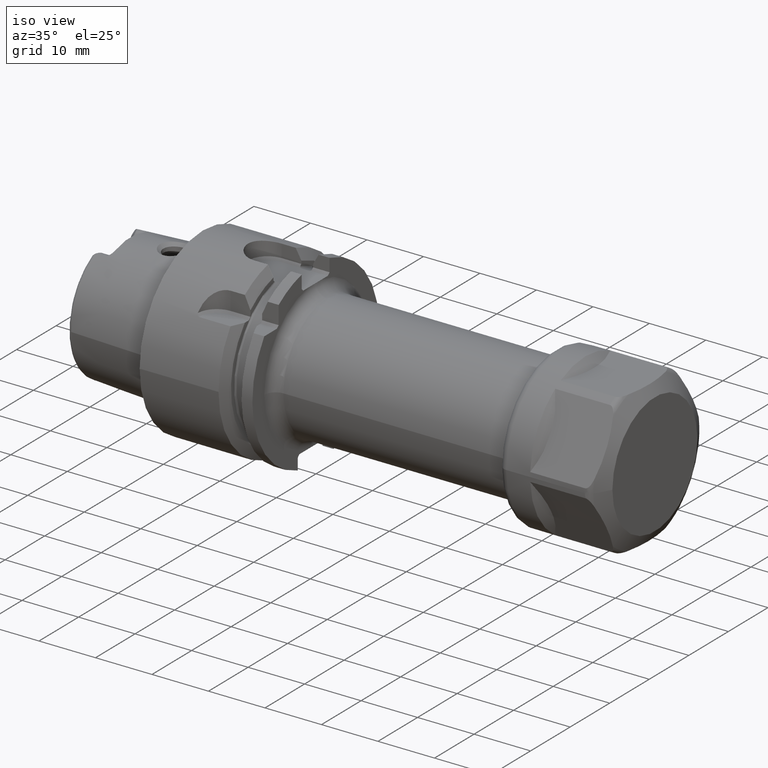
[diagram: clean part render]
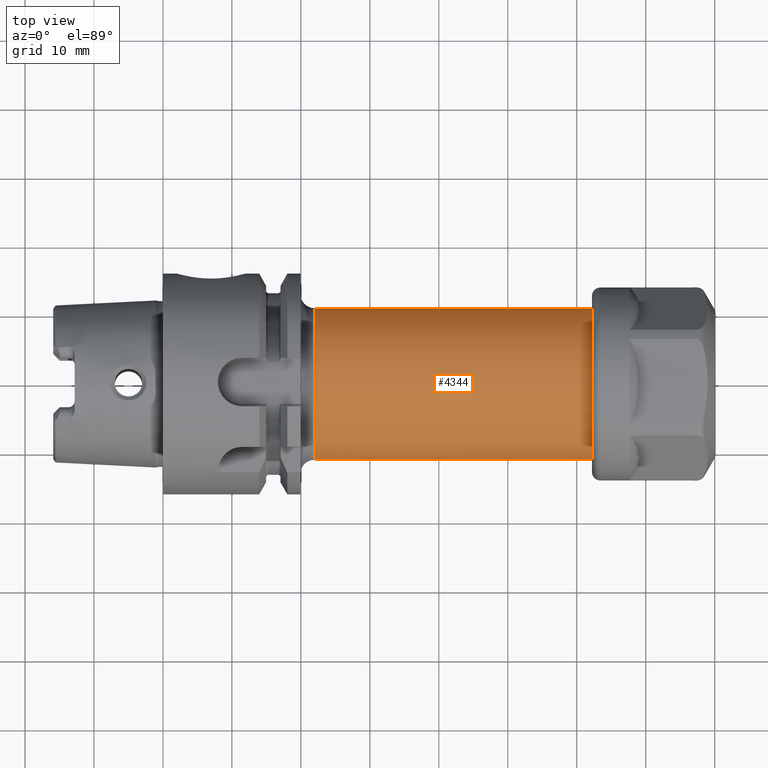
[diagram: tour spotlight — one face highlighted and labeled with its STEP entity id]
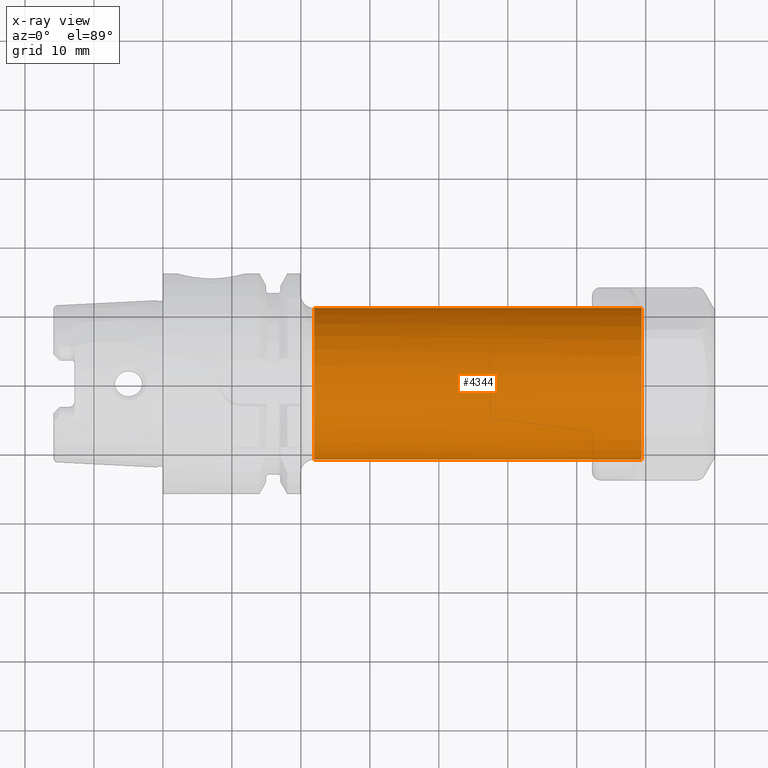
[diagram: x-ray of the same camera — body ghosted, this tour face saturated]
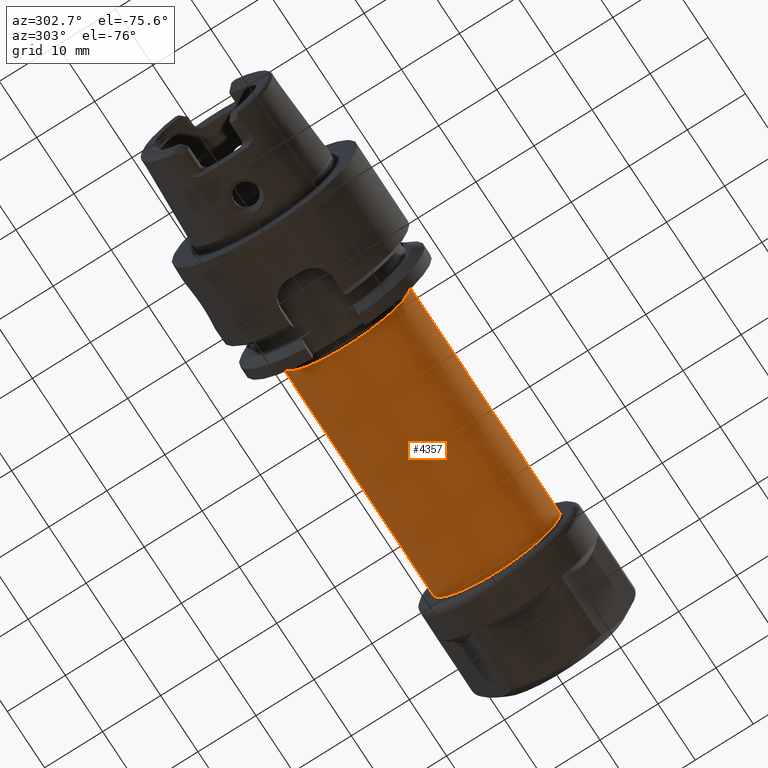
[diagram: tour spotlight — one face highlighted and labeled with its STEP entity id]
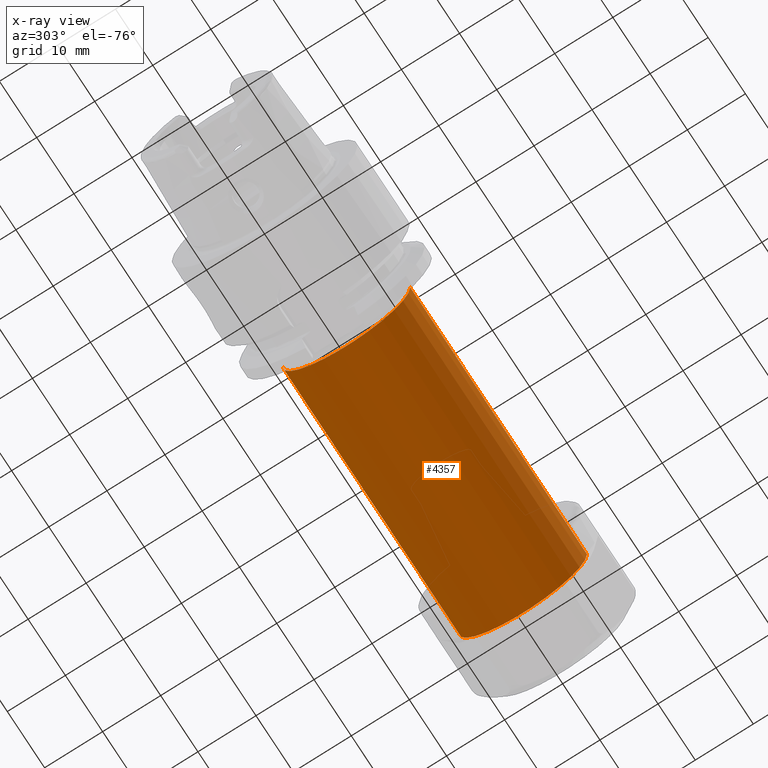
[diagram: x-ray of the same camera — body ghosted, this tour face saturated]
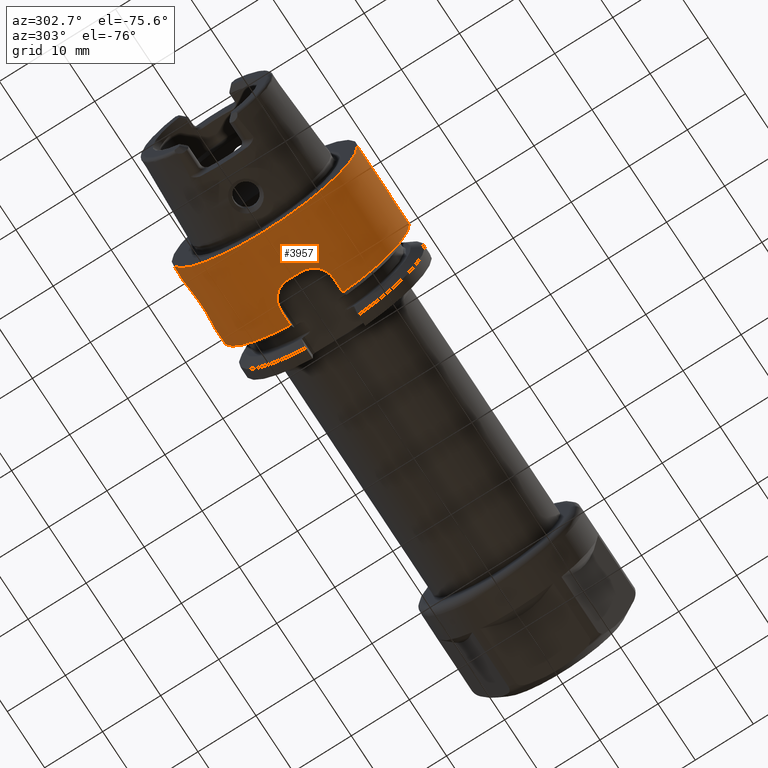
[diagram: tour spotlight — one face highlighted and labeled with its STEP entity id]
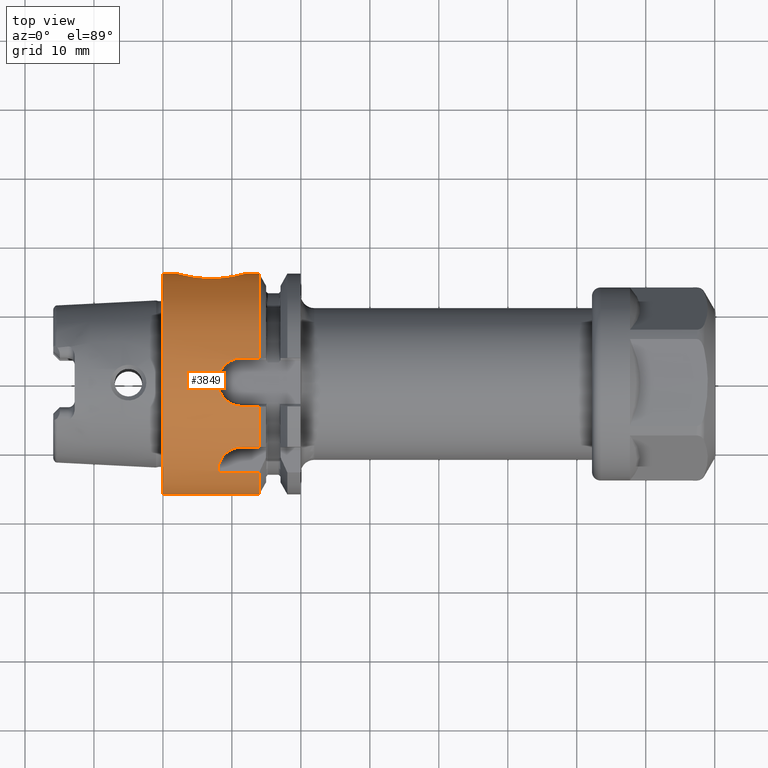
[diagram: tour spotlight — one face highlighted and labeled with its STEP entity id]
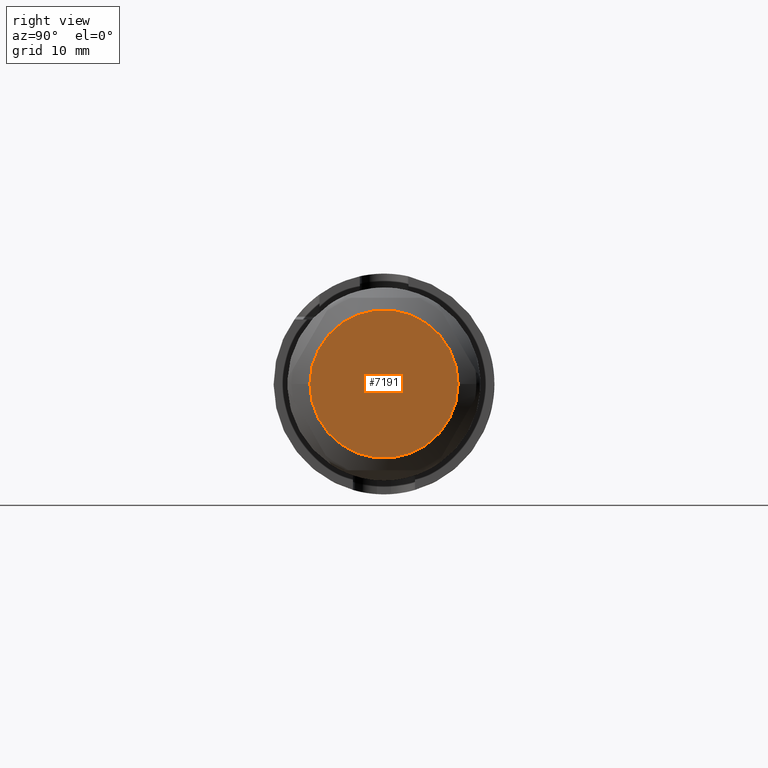
[diagram: tour spotlight — one face highlighted and labeled with its STEP entity id]
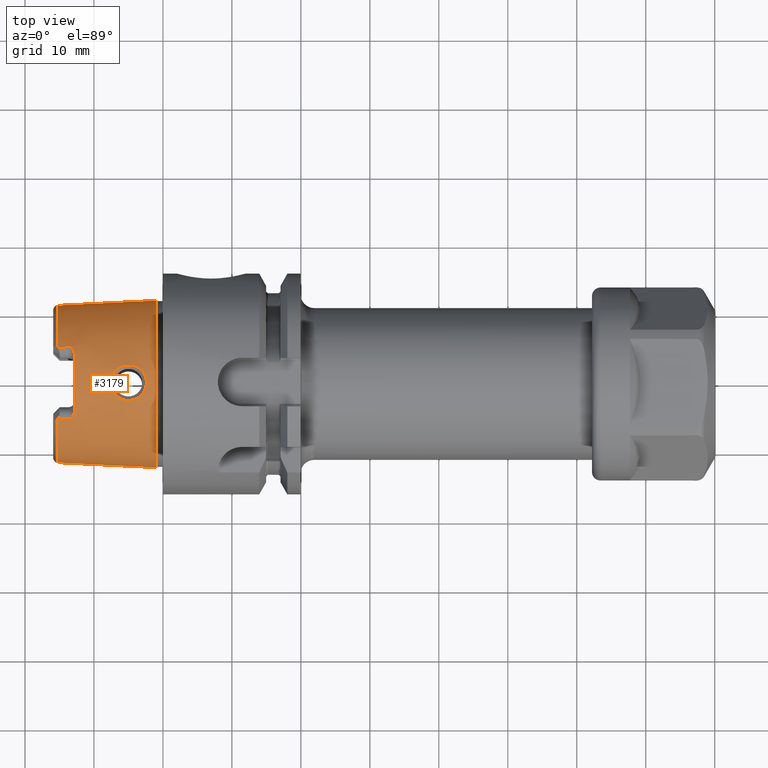
[diagram: tour spotlight — one face highlighted and labeled with its STEP entity id]
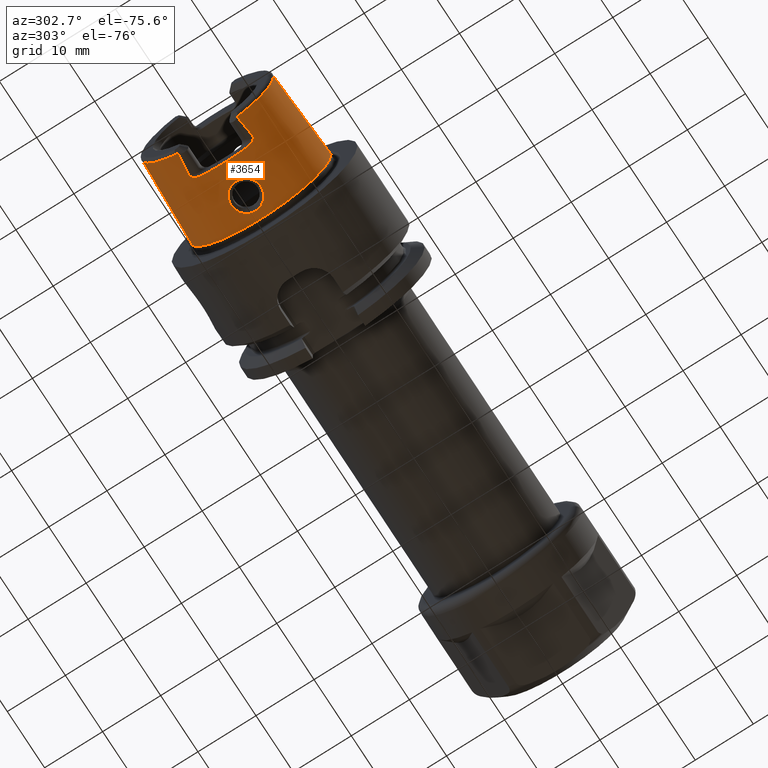
[diagram: tour spotlight — one face highlighted and labeled with its STEP entity id]
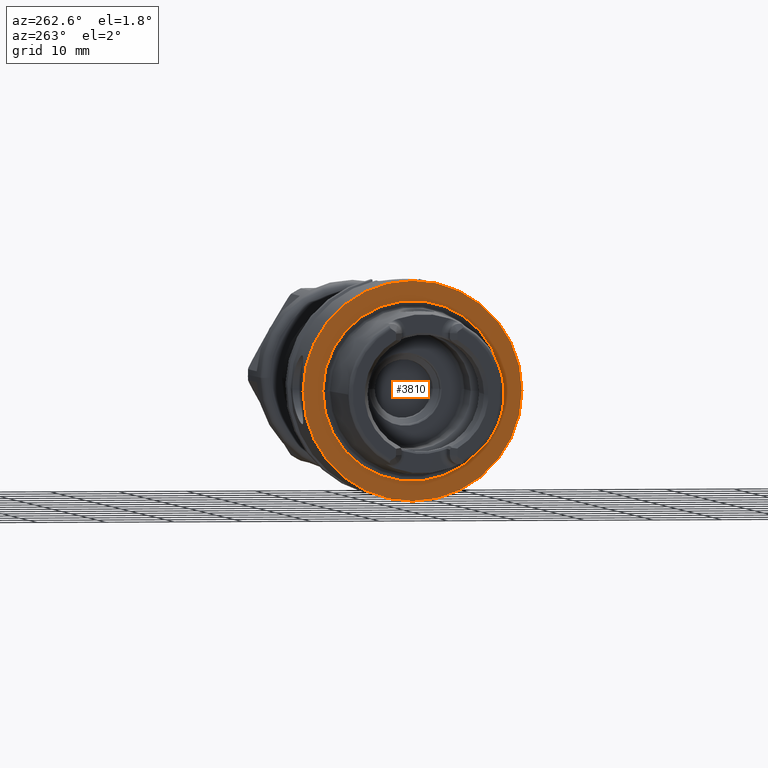
[diagram: tour spotlight — one face highlighted and labeled with its STEP entity id]
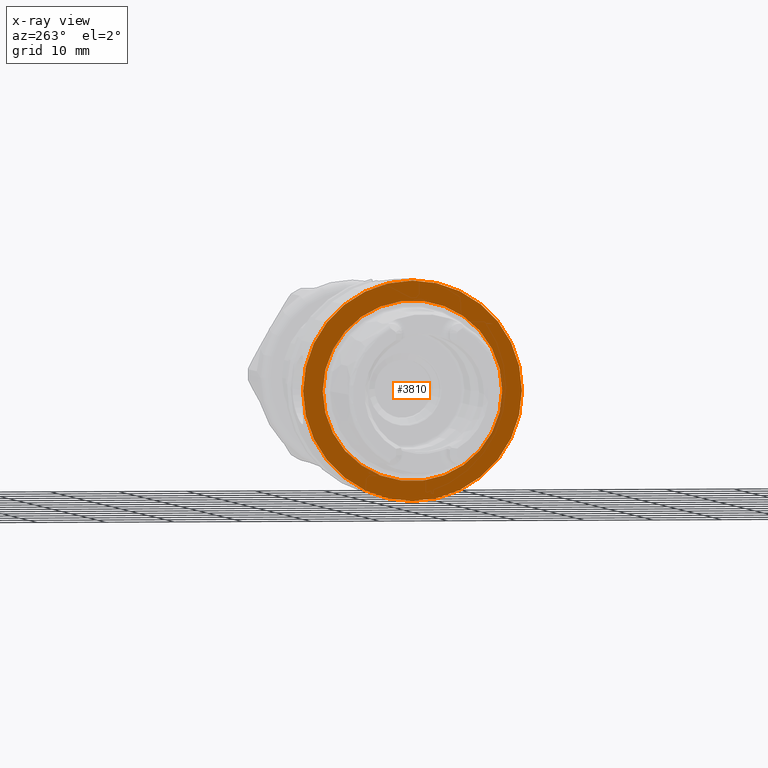
[diagram: x-ray of the same camera — body ghosted, this tour face saturated]
A machine part: a face-by-face anatomy tour. The part has 207 B-rep faces; the first image is the clean iso view, then the 8 largest visible faces are spotlighted one at a time (largest first), each with its STEP entity span.

Face 1 — top view, entity #4344. An x-ray twin of the same camera follows (body ghosted, this face saturated) — the face is partly hidden behind the body. In plain terms, the highlighted cylindrical surface (partial cylindrical patch) has radius 11 mm, axis along (1, 0, 0).
Definition (entity closure, byte-faithful):
#1225=CARTESIAN_POINT('',(2.195E1,0.E0,0.E0));
#1226=DIRECTION('',(1.E0,0.E0,0.E0));
#1227=DIRECTION('',(0.E0,3.570743503254E-6,9.999999999936E-1));
#1228=AXIS2_PLACEMENT_3D('',#1225,#1226,#1227);
#1230=CARTESIAN_POINT('',(2.195E1,0.E0,0.E0));
#1231=DIRECTION('',(1.E0,0.E0,0.E0));
#1232=DIRECTION('',(0.E0,1.E0,0.E0));
#1233=AXIS2_PLACEMENT_3D('',#1230,#1231,#1232);
#1235=CARTESIAN_POINT('',(6.94E1,0.E0,0.E0));
#1236=DIRECTION('',(1.E0,0.E0,0.E0));
#1237=DIRECTION('',(0.E0,1.E0,0.E0));
#1238=AXIS2_PLACEMENT_3D('',#1235,#1236,#1237);
#1240=DIRECTION('',(-1.E0,0.E0,-9.561997652939E-14));
#1241=VECTOR('',#1240,4.745E1);
#1242=CARTESIAN_POINT('',(6.94E1,-1.1E1,0.E0));
#1243=LINE('',#1242,#1241);
#1249=DIRECTION('',(-1.E0,0.E0,6.364966704577E-14));
#1250=VECTOR('',#1249,4.745E1);
#1251=CARTESIAN_POINT('',(6.94E1,1.1E1,0.E0));
#1252=LINE('',#1251,#1250);
#3116=CARTESIAN_POINT('',(2.195E1,3.927817853579E-5,1.099999999993E1));
#3117=CARTESIAN_POINT('',(2.195E1,-1.1E1,0.E0));
#3118=VERTEX_POINT('',#3116);
#3119=VERTEX_POINT('',#3117);
#3122=CARTESIAN_POINT('',(2.195E1,1.1E1,0.E0));
#3123=VERTEX_POINT('',#3122);
#3126=CARTESIAN_POINT('',(6.94E1,1.1E1,0.E0));
#3127=VERTEX_POINT('',#3126);
#3128=CARTESIAN_POINT('',(6.94E1,-1.1E1,0.E0));
#3129=VERTEX_POINT('',#3128);
#4329=CARTESIAN_POINT('',(1.74775E1,0.E0,0.E0));
#4330=DIRECTION('',(1.E0,0.E0,0.E0));
#4331=DIRECTION('',(0.E0,-1.E0,0.E0));
#4332=AXIS2_PLACEMENT_3D('',#4329,#4330,#4331);
#4333=CYLINDRICAL_SURFACE('',#4332,1.1E1);
#4334=ORIENTED_EDGE('',*,*,#4319,.F.);
#4335=ORIENTED_EDGE('',*,*,#4304,.F.);
#4337=ORIENTED_EDGE('',*,*,#4336,.F.);
#4339=ORIENTED_EDGE('',*,*,#4338,.T.);
#4341=ORIENTED_EDGE('',*,*,#4340,.T.);
#4342=EDGE_LOOP('',(#4334,#4335,#4337,#4339,#4341));
#4343=FACE_OUTER_BOUND('',#4342,.F.);
#4344=ADVANCED_FACE('',(#4343),#4333,.T.);
#1229=CIRCLE('',#1228,1.1E1);
#1234=CIRCLE('',#1233,1.1E1);
#1239=CIRCLE('',#1238,1.1E1);
#4304=EDGE_CURVE('',#3123,#3118,#1234,.T.);
#4319=EDGE_CURVE('',#3118,#3119,#1229,.T.);
#4336=EDGE_CURVE('',#3127,#3123,#1252,.T.);
#4338=EDGE_CURVE('',#3127,#3129,#1239,.T.);
#4340=EDGE_CURVE('',#3129,#3119,#1243,.T.);

Face 2 — auxiliary view, entity #4357. An x-ray twin of the same camera follows (body ghosted, this face saturated) — the face is partly hidden behind the body. In plain terms, the highlighted cylindrical surface (partial cylindrical patch) has radius 11 mm, axis along (1, 0, 0).
Definition (entity closure, byte-faithful):
#1210=CARTESIAN_POINT('',(2.195E1,0.E0,0.E0));
#1211=DIRECTION('',(1.E0,0.E0,0.E0));
#1212=DIRECTION('',(0.E0,-1.E0,0.E0));
#1213=AXIS2_PLACEMENT_3D('',#1210,#1211,#1212);
#1240=DIRECTION('',(-1.E0,0.E0,-9.561997652939E-14));
#1241=VECTOR('',#1240,4.745E1);
#1242=CARTESIAN_POINT('',(6.94E1,-1.1E1,0.E0));
#1243=LINE('',#1242,#1241);
#1244=CARTESIAN_POINT('',(6.94E1,0.E0,0.E0));
#1245=DIRECTION('',(-1.E0,0.E0,0.E0));
#1246=DIRECTION('',(0.E0,1.E0,0.E0));
#1247=AXIS2_PLACEMENT_3D('',#1244,#1245,#1246);
#1249=DIRECTION('',(-1.E0,0.E0,6.364966704577E-14));
#1250=VECTOR('',#1249,4.745E1);
#1251=CARTESIAN_POINT('',(6.94E1,1.1E1,0.E0));
#1252=LINE('',#1251,#1250);
#3117=CARTESIAN_POINT('',(2.195E1,-1.1E1,0.E0));
#3119=VERTEX_POINT('',#3117);
#3122=CARTESIAN_POINT('',(2.195E1,1.1E1,0.E0));
#3123=VERTEX_POINT('',#3122);
#3126=CARTESIAN_POINT('',(6.94E1,1.1E1,0.E0));
#3127=VERTEX_POINT('',#3126);
#3128=CARTESIAN_POINT('',(6.94E1,-1.1E1,0.E0));
#3129=VERTEX_POINT('',#3128);
#4345=CARTESIAN_POINT('',(1.74775E1,0.E0,0.E0));
#4346=DIRECTION('',(1.E0,0.E0,0.E0));
#4347=DIRECTION('',(0.E0,-1.E0,0.E0));
#4348=AXIS2_PLACEMENT_3D('',#4345,#4346,#4347);
#4349=CYLINDRICAL_SURFACE('',#4348,1.1E1);
#4350=ORIENTED_EDGE('',*,*,#4302,.F.);
#4351=ORIENTED_EDGE('',*,*,#4340,.F.);
#4353=ORIENTED_EDGE('',*,*,#4352,.F.);
#4354=ORIENTED_EDGE('',*,*,#4336,.T.);
#4355=EDGE_LOOP('',(#4350,#4351,#4353,#4354));
#4356=FACE_OUTER_BOUND('',#4355,.F.);
#4357=ADVANCED_FACE('',(#4356),#4349,.T.);
#1214=CIRCLE('',#1213,1.1E1);
#1248=CIRCLE('',#1247,1.1E1);
#4302=EDGE_CURVE('',#3119,#3123,#1214,.T.);
#4336=EDGE_CURVE('',#3127,#3123,#1252,.T.);
#4340=EDGE_CURVE('',#3129,#3119,#1243,.T.);
#4352=EDGE_CURVE('',#3127,#3129,#1248,.T.);

Face 3 — auxiliary view, entity #3957. In plain terms, the highlighted cylindrical surface (partial cylindrical patch) has radius 16 mm, axis along (1, 0, 0).
Definition (entity closure, byte-faithful):
#657=CARTESIAN_POINT('',(0.E0,0.E0,0.E0));
#658=DIRECTION('',(-1.E0,0.E0,0.E0));
#659=DIRECTION('',(0.E0,1.E0,0.E0));
#660=AXIS2_PLACEMENT_3D('',#657,#658,#659);
#672=CARTESIAN_POINT('',(1.2E1,1.6E1,1.008602021616E-14));
#775=CARTESIAN_POINT('',(2.E0,1.6E1,0.E0));
#839=CARTESIAN_POINT('',(7.E0,1.519868415357E1,-5.E0));
#840=CARTESIAN_POINT('',(7.265573752108E0,1.519868415357E1,-5.E0));
#841=CARTESIAN_POINT('',(7.787775370214E0,1.521251267140E1,-4.958250951519E0));
#842=CARTESIAN_POINT('',(8.552162180971E0,1.527172049631E1,-4.774439476453E0));
#843=CARTESIAN_POINT('',(9.273893545993E0,1.536269559419E1,-4.475749077499E0));
#844=CARTESIAN_POINT('',(9.943265630933E0,1.547682106835E1,-4.067370527077E0));
#845=CARTESIAN_POINT('',(1.054555286973E1,1.560357056947E1,-3.555049249105E0));
#846=CARTESIAN_POINT('',(1.106248803419E1,1.573010080616E1,-2.950844212215E0));
#847=CARTESIAN_POINT('',(1.147821598612E1,1.584346513917E1,-2.270710839893E0));
#848=CARTESIAN_POINT('',(1.177930888516E1,1.593188386378E1,-1.537904894141E0));
#849=CARTESIAN_POINT('',(1.195987549417E1,1.598739360145E1,-7.751311207503E-1));
#850=CARTESIAN_POINT('',(1.2E1,1.6E1,-2.599700860639E-1));
#851=CARTESIAN_POINT('',(1.2E1,1.6E1,1.008602021616E-14));
#853=CARTESIAN_POINT('',(2.E0,1.6E1,0.E0));
#854=CARTESIAN_POINT('',(2.E0,1.6E1,-2.599291448819E-1));
#855=CARTESIAN_POINT('',(2.040105170769E0,1.598739957788E1,-7.750591203535E-1));
#856=CARTESIAN_POINT('',(2.220741048432E0,1.593186842946E1,-1.538105013814E0));
#857=CARTESIAN_POINT('',(2.521930719684E0,1.584342315306E1,-2.270997861791E0));
#858=CARTESIAN_POINT('',(2.937609181598E0,1.573007755826E1,-2.950942841200E0));
#859=CARTESIAN_POINT('',(3.454189659439E0,1.560363401361E1,-3.554750620759E0));
#860=CARTESIAN_POINT('',(4.056033401020E0,1.547696027088E1,-4.066836530803E0));
#861=CARTESIAN_POINT('',(4.725086333586E0,1.536284855481E1,-4.475228339106E0));
#862=CARTESIAN_POINT('',(5.446901243607E0,1.527181251262E1,-4.774149908220E0));
#863=CARTESIAN_POINT('',(6.211585043176E0,1.521253854427E1,-4.958172918146E0));
#864=CARTESIAN_POINT('',(6.734183056938E0,1.519868415357E1,-5.E0));
#865=CARTESIAN_POINT('',(7.E0,1.519868415357E1,-5.E0));
#867=DIRECTION('',(-1.E0,0.E0,0.E0));
#868=VECTOR('',#867,2.E0);
#869=CARTESIAN_POINT('',(2.E0,1.6E1,0.E0));
#870=LINE('',#869,#868);
#871=DIRECTION('',(-1.E0,0.E0,0.E0));
#872=VECTOR('',#871,1.396484030111E1);
#873=CARTESIAN_POINT('',(1.396484030111E1,-1.6E1,0.E0));
#874=LINE('',#873,#872);
#875=CARTESIAN_POINT('',(1.396484030111E1,0.E0,0.E0));
#876=DIRECTION('',(1.E0,0.E0,0.E0));
#877=DIRECTION('',(0.E0,-1.E0,0.E0));
#878=AXIS2_PLACEMENT_3D('',#875,#876,#877);
#880=DIRECTION('',(1.E0,0.E0,0.E0));
#881=VECTOR('',#880,2.514840301107E0);
#882=CARTESIAN_POINT('',(1.145E1,-4.5145E0,-1.534989543124E1));
#883=LINE('',#882,#881);
#884=CARTESIAN_POINT('',(7.95E0,-1.0145E0,-1.596780478807E1));
#885=CARTESIAN_POINT('',(7.95E0,-1.183052166142E0,-1.595709597901E1));
#886=CARTESIAN_POINT('',(7.974092980258E0,-1.516120703984E0,-1.593060693980E1));
#887=CARTESIAN_POINT('',(8.081281434952E0,-2.007499252738E0,-1.587605075952E1));
#888=CARTESIAN_POINT('',(8.257346373518E0,-2.477382109953E0,-1.580927357571E1));
#889=CARTESIAN_POINT('',(8.496783431328E0,-2.914945049402E0,-1.573416688996E1));
#890=CARTESIAN_POINT('',(8.797041637400E0,-3.315494092662E0,-1.565429607059E1));
#891=CARTESIAN_POINT('',(9.148541821424E0,-3.667037459511E0,-1.557530796119E1));
#892=CARTESIAN_POINT('',(9.548692626697E0,-3.967141577191E0,-1.550121617294E1));
#893=CARTESIAN_POINT('',(9.986135339502E0,-4.206722330631E0,-1.543757807998E1));
#894=CARTESIAN_POINT('',(1.045657265286E1,-4.383126672186E0,-1.538815380690E1));
#895=CARTESIAN_POINT('',(1.094840210053E1,-4.490418189113E0,-1.535700809734E1));
#896=CARTESIAN_POINT('',(1.128143628612E1,-4.5145E0,-1.534989543124E1));
#897=CARTESIAN_POINT('',(1.145E1,-4.5145E0,-1.534989543124E1));
#899=CARTESIAN_POINT('',(7.95E0,0.E0,0.E0));
#900=DIRECTION('',(1.E0,0.E0,0.E0));
#901=DIRECTION('',(0.E0,-6.340625E-2,-9.979877992545E-1));
#902=AXIS2_PLACEMENT_3D('',#899,#900,#901);
#904=CARTESIAN_POINT('',(1.145E1,4.5145E0,-1.534989543124E1));
#905=CARTESIAN_POINT('',(1.128155525724E1,4.5145E0,-1.534989543124E1));
#906=CARTESIAN_POINT('',(1.094864753753E1,4.490465898103E0,-1.535699417955E1));
#907=CARTESIAN_POINT('',(1.045631777658E1,4.383072707401E0,-1.538816956741E1));
#908=CARTESIAN_POINT('',(9.985757699294E0,4.206550857373E0,-1.543762541927E1));
#909=CARTESIAN_POINT('',(9.548444842132E0,3.966958523225E0,-1.550126187477E1));
#910=CARTESIAN_POINT('',(9.148866113494E0,3.667268424781E0,-1.557524952146E1));
#911=CARTESIAN_POINT('',(8.797786385284E0,3.316309320668E0,-1.565411863807E1));
#912=CARTESIAN_POINT('',(8.497639723364E0,2.916249129552E0,-1.573392168619E1));
#913=CARTESIAN_POINT('',(8.257987407753E0,2.478821716195E0,-1.580905025516E1));
#914=CARTESIAN_POINT('',(8.081524017197E0,2.008429633790E0,-1.587593899400E1));
#915=CARTESIAN_POINT('',(7.974136253933E0,1.516571122065E0,-1.593056875927E1));
#916=CARTESIAN_POINT('',(7.95E0,1.183199158104E0,-1.595708664001E1));
#917=CARTESIAN_POINT('',(7.95E0,1.0145E0,-1.596780478807E1));
#919=DIRECTION('',(1.E0,0.E0,0.E0));
#920=VECTOR('',#919,2.514840301107E0);
#921=CARTESIAN_POINT('',(1.145E1,4.5145E0,-1.534989543124E1));
#922=LINE('',#921,#920);
#923=CARTESIAN_POINT('',(1.396484030111E1,0.E0,0.E0));
#924=DIRECTION('',(1.E0,0.E0,0.E0));
#925=DIRECTION('',(0.E0,2.8215625E-1,-9.593684644525E-1));
#926=AXIS2_PLACEMENT_3D('',#923,#924,#925);
#928=DIRECTION('',(-1.E0,0.E0,0.E0));
#929=VECTOR('',#928,1.964840301107E0);
#930=CARTESIAN_POINT('',(1.396484030111E1,1.6E1,0.E0));
#931=LINE('',#930,#929);
#1509=CARTESIAN_POINT('',(1.396484030111E1,4.5145E0,-1.534989543124E1));
#1618=CARTESIAN_POINT('',(1.396484030111E1,-4.5145E0,-1.534989543124E1));
#2843=VERTEX_POINT('',#1509);
#2853=VERTEX_POINT('',#1618);
#2954=CARTESIAN_POINT('',(1.145E1,-4.5145E0,-1.534989543124E1));
#2955=VERTEX_POINT('',#2954);
#2956=CARTESIAN_POINT('',(7.95E0,-1.0145E0,-1.596780478807E1));
#2957=VERTEX_POINT('',#2956);
#2958=CARTESIAN_POINT('',(7.95E0,1.0145E0,-1.596780478807E1));
#2959=VERTEX_POINT('',#2958);
#2960=CARTESIAN_POINT('',(1.145E1,4.5145E0,-1.534989543124E1));
#2961=VERTEX_POINT('',#2960);
#3000=CARTESIAN_POINT('',(0.E0,1.6E1,0.E0));
#3001=CARTESIAN_POINT('',(0.E0,-1.6E1,0.E0));
#3002=VERTEX_POINT('',#3000);
#3003=VERTEX_POINT('',#3001);
#3004=CARTESIAN_POINT('',(1.396484030111E1,1.6E1,0.E0));
#3005=VERTEX_POINT('',#3004);
#3006=CARTESIAN_POINT('',(1.396484030111E1,-1.6E1,0.E0));
#3007=VERTEX_POINT('',#3006);
#3100=VERTEX_POINT('',#672);
#3102=VERTEX_POINT('',#775);
#3103=VERTEX_POINT('',#839);
#3930=CARTESIAN_POINT('',(-1.76925E1,0.E0,0.E0));
#3931=DIRECTION('',(1.E0,0.E0,0.E0));
#3932=DIRECTION('',(0.E0,-1.E0,0.E0));
#3933=AXIS2_PLACEMENT_3D('',#3930,#3931,#3932);
#3934=CYLINDRICAL_SURFACE('',#3933,1.6E1);
#3935=ORIENTED_EDGE('',*,*,#3862,.F.);
#3936=ORIENTED_EDGE('',*,*,#3873,.F.);
#3937=ORIENTED_EDGE('',*,*,#3843,.T.);
#3938=ORIENTED_EDGE('',*,*,#3802,.T.);
#3939=ORIENTED_EDGE('',*,*,#3840,.F.);
#3941=ORIENTED_EDGE('',*,*,#3940,.T.);
#3943=ORIENTED_EDGE('',*,*,#3942,.F.);
#3945=ORIENTED_EDGE('',*,*,#3944,.F.);
#3947=ORIENTED_EDGE('',*,*,#3946,.T.);
#3949=ORIENTED_EDGE('',*,*,#3948,.F.);
#3951=ORIENTED_EDGE('',*,*,#3950,.T.);
#3953=ORIENTED_EDGE('',*,*,#3952,.T.);
#3954=ORIENTED_EDGE('',*,*,#3818,.T.);
#3955=EDGE_LOOP('',(#3935,#3936,#3937,#3938,#3939,#3941,#3943,#3945,#3947,#3949,
#3951,#3953,#3954));
#3956=FACE_OUTER_BOUND('',#3955,.F.);
#3957=ADVANCED_FACE('',(#3956),#3934,.T.);
#661=CIRCLE('',#660,1.6E1);
#852=B_SPLINE_CURVE_WITH_KNOTS('',3,(#839,#840,#841,#842,#843,#844,#845,#846,
#847,#848,#849,#850,#851),.UNSPECIFIED.,.F.,.F.,(4,1,1,1,1,1,1,1,1,1,4),(0.E0,
1.E-1,2.E-1,3.E-1,4.E-1,5.E-1,6.E-1,7.E-1,8.E-1,9.E-1,1.E0),.UNSPECIFIED.);
#866=B_SPLINE_CURVE_WITH_KNOTS('',3,(#853,#854,#855,#856,#857,#858,#859,#860,
#861,#862,#863,#864,#865),.UNSPECIFIED.,.F.,.F.,(4,1,1,1,1,1,1,1,1,1,4),(0.E0,
1.E-1,2.E-1,3.E-1,4.E-1,5.E-1,6.E-1,7.E-1,8.E-1,9.E-1,1.E0),.UNSPECIFIED.);
#879=CIRCLE('',#878,1.6E1);
#898=B_SPLINE_CURVE_WITH_KNOTS('',3,(#884,#885,#886,#887,#888,#889,#890,#891,
#892,#893,#894,#895,#896,#897),.UNSPECIFIED.,.F.,.F.,(4,1,1,1,1,1,1,1,1,1,1,4),(
0.E0,9.090909090909E-2,1.818181818182E-1,2.727272727273E-1,3.636363636364E-1,
4.545454545455E-1,5.454545454545E-1,6.363636363636E-1,7.272727272727E-1,
8.181818181818E-1,9.090909090909E-1,1.E0),.UNSPECIFIED.);
#903=CIRCLE('',#902,1.6E1);
#918=B_SPLINE_CURVE_WITH_KNOTS('',3,(#904,#905,#906,#907,#908,#909,#910,#911,
#912,#913,#914,#915,#916,#917),.UNSPECIFIED.,.F.,.F.,(4,1,1,1,1,1,1,1,1,1,1,4),(
0.E0,9.090909090909E-2,1.818181818182E-1,2.727272727273E-1,3.636363636364E-1,
4.545454545455E-1,5.454545454545E-1,6.363636363636E-1,7.272727272727E-1,
8.181818181818E-1,9.090909090909E-1,1.E0),.UNSPECIFIED.);
#927=CIRCLE('',#926,1.6E1);
#3802=EDGE_CURVE('',#3002,#3003,#661,.T.);
#3818=EDGE_CURVE('',#3005,#3100,#931,.T.);
#3840=EDGE_CURVE('',#3007,#3003,#874,.T.);
#3843=EDGE_CURVE('',#3102,#3002,#870,.T.);
#3862=EDGE_CURVE('',#3103,#3100,#852,.T.);
#3873=EDGE_CURVE('',#3102,#3103,#866,.T.);
#3940=EDGE_CURVE('',#3007,#2853,#879,.T.);
#3942=EDGE_CURVE('',#2955,#2853,#883,.T.);
#3944=EDGE_CURVE('',#2957,#2955,#898,.T.);
#3946=EDGE_CURVE('',#2957,#2959,#903,.T.);
#3948=EDGE_CURVE('',#2961,#2959,#918,.T.);
#3950=EDGE_CURVE('',#2961,#2843,#922,.T.);
#3952=EDGE_CURVE('',#2843,#3005,#927,.T.);

Face 4 — top view, entity #3849. In plain terms, the highlighted cylindrical surface (partial cylindrical patch) has radius 16 mm, axis along (1, 0, 0).
Definition (entity closure, byte-faithful):
#652=CARTESIAN_POINT('',(0.E0,0.E0,0.E0));
#653=DIRECTION('',(1.E0,0.E0,0.E0));
#654=DIRECTION('',(0.E0,1.E0,0.E0));
#655=AXIS2_PLACEMENT_3D('',#652,#653,#654);
#672=CARTESIAN_POINT('',(1.2E1,1.6E1,1.008602021616E-14));
#673=CARTESIAN_POINT('',(1.2E1,1.6E1,1.384831210731E-1));
#674=CARTESIAN_POINT('',(1.198857472883E1,1.599642383929E1,4.152201587552E-1));
#675=CARTESIAN_POINT('',(1.193617925837E1,1.598012685317E1,8.325514525903E-1));
#676=CARTESIAN_POINT('',(1.184918862596E1,1.595341424613E1,1.242244236119E0));
#677=CARTESIAN_POINT('',(1.173005148059E1,1.591753791280E1,1.637751727769E0));
#678=CARTESIAN_POINT('',(1.158076576168E1,1.587371987355E1,2.018395523805E0));
#679=CARTESIAN_POINT('',(1.139184063221E1,1.582006425608E1,2.403716168340E0));
#680=CARTESIAN_POINT('',(1.114947778328E1,1.575421076374E1,2.804049621060E0));
#681=CARTESIAN_POINT('',(1.083383536282E1,1.567346501870E1,3.226138953249E0));
#682=CARTESIAN_POINT('',(1.041998168295E1,1.557655309088E1,3.665864750429E0));
#683=CARTESIAN_POINT('',(9.900055378106E0,1.546936725606E1,4.093942619542E0));
#684=CARTESIAN_POINT('',(9.255795997863E0,1.536009398866E1,4.484674152869E0));
#685=CARTESIAN_POINT('',(8.524207561993E0,1.526852878969E1,4.784634512282E0));
#686=CARTESIAN_POINT('',(7.742547190435E0,1.521033340607E1,4.964859089440E0));
#687=CARTESIAN_POINT('',(7.246583726505E0,1.519868415357E1,5.E0));
#688=CARTESIAN_POINT('',(7.E0,1.519868415357E1,5.E0));
#690=CARTESIAN_POINT('',(1.396484030111E1,0.E0,0.E0));
#691=DIRECTION('',(1.E0,0.E0,0.E0));
#692=DIRECTION('',(0.E0,1.E0,0.E0));
#693=AXIS2_PLACEMENT_3D('',#690,#691,#692);
#695=DIRECTION('',(1.E0,0.E0,0.E0));
#696=VECTOR('',#695,2.500340301107E0);
#697=CARTESIAN_POINT('',(1.14645E1,3.5145E0,1.560923732121E1));
#698=LINE('',#697,#696);
#699=CARTESIAN_POINT('',(1.14645E1,-3.5145E0,1.560923732121E1));
#700=CARTESIAN_POINT('',(1.124580290028E1,-3.5145E0,1.560923732121E1));
#701=CARTESIAN_POINT('',(1.081663522347E1,-3.474643976128E0,1.561829769930E1));
#702=CARTESIAN_POINT('',(1.018456168032E1,-3.294803153140E0,1.565767703599E1));
#703=CARTESIAN_POINT('',(9.603164027011E0,-3.004745330961E0,1.571662282257E1));
#704=CARTESIAN_POINT('',(9.080980274596E0,-2.609833699146E0,1.578778166669E1));
#705=CARTESIAN_POINT('',(8.644808146623E0,-2.131294979080E0,1.586032285614E1));
#706=CARTESIAN_POINT('',(8.299183665744E0,-1.572988995087E0,1.592609844267E1));
#707=CARTESIAN_POINT('',(8.064070595974E0,-9.658282963753E-1,1.597504049413E1));
#708=CARTESIAN_POINT('',(7.944083359891E0,-3.152991215932E-1,1.600128824226E1));
#709=CARTESIAN_POINT('',(7.945291483030E0,3.278725829061E-1,1.600101939083E1));
#710=CARTESIAN_POINT('',(8.067207125482E0,9.762967524750E-1,1.597436794712E1));
#711=CARTESIAN_POINT('',(8.303100444425E0,1.580511182422E0,1.592531794369E1));
#712=CARTESIAN_POINT('',(8.648600216331E0,2.136041143432E0,1.585965440796E1));
#713=CARTESIAN_POINT('',(9.083612459901E0,2.612033277685E0,1.578739779918E1));
#714=CARTESIAN_POINT('',(9.604309948942E0,3.005302741830E0,1.571650700245E1));
#715=CARTESIAN_POINT('',(1.018393377645E1,3.294455384659E0,1.565774842815E1));
#716=CARTESIAN_POINT('',(1.081518657658E1,3.474385240502E0,1.561835648547E1));
#717=CARTESIAN_POINT('',(1.124513674610E1,3.5145E0,1.560923732121E1));
#718=CARTESIAN_POINT('',(1.14645E1,3.5145E0,1.560923732121E1));
#720=DIRECTION('',(1.E0,0.E0,0.E0));
#721=VECTOR('',#720,2.500340301107E0);
#722=CARTESIAN_POINT('',(1.14645E1,-3.5145E0,1.560923732121E1));
#723=LINE('',#722,#721);
#724=CARTESIAN_POINT('',(1.396484030111E1,0.E0,0.E0));
#725=DIRECTION('',(1.E0,0.E0,0.E0));
#726=DIRECTION('',(0.E0,-2.1965625E-1,9.755773325759E-1));
#727=AXIS2_PLACEMENT_3D('',#724,#725,#726);
#729=DIRECTION('',(1.E0,0.E0,0.E0));
#730=VECTOR('',#729,2.514925306096E0);
#731=CARTESIAN_POINT('',(1.144991499501E1,-9.35E0,1.298373983103E1));
#732=LINE('',#731,#730);
#733=CARTESIAN_POINT('',(7.953757123085E0,-1.268611465035E1,9.750003881231E0));
#734=CARTESIAN_POINT('',(7.961866156194E0,-1.251312407491E1,9.975088786509E0));
#735=CARTESIAN_POINT('',(8.003649176460E0,-1.217334939288E1,1.039239953071E1));
#736=CARTESIAN_POINT('',(8.133796547442E0,-1.169582882618E1,1.092509647137E1));
#737=CARTESIAN_POINT('',(8.322618300446E0,-1.125477118312E1,1.137746944480E1));
#738=CARTESIAN_POINT('',(8.561962394751E0,-1.085544943176E1,1.175773830246E1));
#739=CARTESIAN_POINT('',(8.833674145437E0,-1.051247229319E1,1.206418838671E1));
#740=CARTESIAN_POINT('',(9.120122020134E0,-1.022853669123E1,1.230503380001E1));
#741=CARTESIAN_POINT('',(9.413980452850E0,-9.995324465790E0,1.249470360759E1));
#742=CARTESIAN_POINT('',(9.714685523432E0,-9.803733277269E0,1.264526277539E1));
#743=CARTESIAN_POINT('',(1.002524639444E1,-9.646706485841E0,1.276524859090E1));
#744=CARTESIAN_POINT('',(1.035718363610E1,-9.518388395315E0,1.286105825090E1));
#745=CARTESIAN_POINT('',(1.071211119394E1,-9.421916587158E0,1.293176319200E1));
#746=CARTESIAN_POINT('',(1.108026950838E1,-9.362988015399E0,1.297440184194E1));
#747=CARTESIAN_POINT('',(1.132615966221E1,-9.35E0,1.298373983103E1));
#748=CARTESIAN_POINT('',(1.144991499501E1,-9.35E0,1.298373983103E1));
#750=DIRECTION('',(9.999999999998E-1,-2.380866196616E-8,-5.518655600636E-7));
#751=VECTOR('',#750,5.612035974328E0);
#752=CARTESIAN_POINT('',(8.352804326779E0,-1.298373969742E1,9.350003097089E0));
#753=LINE('',#752,#751);
#754=CARTESIAN_POINT('',(1.396484030111E1,0.E0,0.E0));
#755=DIRECTION('',(1.E0,0.E0,0.E0));
#756=DIRECTION('',(0.E0,-8.114837394397E-1,5.84375E-1));
#757=AXIS2_PLACEMENT_3D('',#754,#755,#756);
#759=CARTESIAN_POINT('',(7.E0,1.519868415357E1,5.E0));
#760=CARTESIAN_POINT('',(6.754803113564E0,1.519868415357E1,5.E0));
#761=CARTESIAN_POINT('',(6.262290798436E0,1.521021567416E1,4.965209096844E0));
#762=CARTESIAN_POINT('',(5.489039168972E0,1.526735902769E1,4.788278121417E0));
#763=CARTESIAN_POINT('',(4.765528100126E0,1.535706954690E1,4.494810080379E0));
#764=CARTESIAN_POINT('',(4.125534491610E0,1.546460743672E1,4.111642736040E0));
#765=CARTESIAN_POINT('',(3.605047387187E0,1.557105115636E1,3.689007838870E0));
#766=CARTESIAN_POINT('',(3.187797927560E0,1.566815712346E1,3.251771384690E0));
#767=CARTESIAN_POINT('',(2.868052912720E0,1.574958007858E1,2.829969347888E0));
#768=CARTESIAN_POINT('',(2.621808614951E0,1.581626443516E1,2.428689107909E0));
#769=CARTESIAN_POINT('',(2.429138705619E0,1.587085272626E1,2.041009853197E0));
#770=CARTESIAN_POINT('',(2.276451908883E0,1.591559832173E1,1.656829082878E0));
#771=CARTESIAN_POINT('',(2.154389053973E0,1.595232216531E1,1.256706290314E0));
#772=CARTESIAN_POINT('',(2.065339692383E0,1.597965564277E1,8.423354446150E-1));
#773=CARTESIAN_POINT('',(2.011698369721E0,1.599633820545E1,4.201446886954E-1));
#774=CARTESIAN_POINT('',(2.E0,1.6E1,1.401336895626E-1));
#775=CARTESIAN_POINT('',(2.E0,1.6E1,0.E0));
#867=DIRECTION('',(-1.E0,0.E0,0.E0));
#868=VECTOR('',#867,2.E0);
#869=CARTESIAN_POINT('',(2.E0,1.6E1,0.E0));
#870=LINE('',#869,#868);
#871=DIRECTION('',(-1.E0,0.E0,0.E0));
#872=VECTOR('',#871,1.396484030111E1);
#873=CARTESIAN_POINT('',(1.396484030111E1,-1.6E1,0.E0));
#874=LINE('',#873,#872);
#928=DIRECTION('',(-1.E0,0.E0,0.E0));
#929=VECTOR('',#928,1.964840301107E0);
#930=CARTESIAN_POINT('',(1.396484030111E1,1.6E1,0.E0));
#931=LINE('',#930,#929);
#951=CARTESIAN_POINT('',(1.396484030111E1,-3.5145E0,1.560923732121E1));
#1478=CARTESIAN_POINT('',(1.396484030111E1,3.5145E0,1.560923732121E1));
#1644=CARTESIAN_POINT('',(1.396484030111E1,-1.298373983103E1,9.35E0));
#1670=CARTESIAN_POINT('',(8.352804326779E0,-1.298373969742E1,9.350003097089E0));
#1671=CARTESIAN_POINT('',(8.283970831226E0,-1.293570861382E1,9.416700754122E0));
#1672=CARTESIAN_POINT('',(8.148715362801E0,-1.283804114483E1,9.550149811661E0));
#1673=CARTESIAN_POINT('',(8.018000646523E0,-1.273727679283E1,9.683434786558E0));
#1674=CARTESIAN_POINT('',(7.953757123085E0,-1.268611465035E1,9.750003881231E0));
#1693=CARTESIAN_POINT('',(1.396484030111E1,-9.35E0,1.298373983103E1));
#2823=VERTEX_POINT('',#951);
#2833=VERTEX_POINT('',#1478);
#2903=VERTEX_POINT('',#1644);
#2909=VERTEX_POINT('',#1693);
#2926=CARTESIAN_POINT('',(1.14645E1,3.5145E0,1.560923732121E1));
#2927=VERTEX_POINT('',#2926);
#2928=CARTESIAN_POINT('',(1.14645E1,-3.5145E0,1.560923732121E1));
#2929=VERTEX_POINT('',#2928);
#2970=CARTESIAN_POINT('',(7.953753979137E0,-1.268611543367E1,9.750020980409E0));
#2972=VERTEX_POINT('',#2970);
#2974=CARTESIAN_POINT('',(8.352819797790E0,-1.298373902935E1,9.35E0));
#2976=VERTEX_POINT('',#2974);
#2978=CARTESIAN_POINT('',(1.144991499501E1,-9.35E0,1.298373983103E1));
#2979=VERTEX_POINT('',#2978);
#3000=CARTESIAN_POINT('',(0.E0,1.6E1,0.E0));
#3001=CARTESIAN_POINT('',(0.E0,-1.6E1,0.E0));
#3002=VERTEX_POINT('',#3000);
#3003=VERTEX_POINT('',#3001);
#3004=CARTESIAN_POINT('',(1.396484030111E1,1.6E1,0.E0));
#3005=VERTEX_POINT('',#3004);
#3006=CARTESIAN_POINT('',(1.396484030111E1,-1.6E1,0.E0));
#3007=VERTEX_POINT('',#3006);
#3100=VERTEX_POINT('',#672);
#3101=VERTEX_POINT('',#688);
#3102=VERTEX_POINT('',#775);
#3811=CARTESIAN_POINT('',(-1.76925E1,0.E0,0.E0));
#3812=DIRECTION('',(1.E0,0.E0,0.E0));
#3813=DIRECTION('',(0.E0,-1.E0,0.E0));
#3814=AXIS2_PLACEMENT_3D('',#3811,#3812,#3813);
#3815=CYLINDRICAL_SURFACE('',#3814,1.6E1);
#3817=ORIENTED_EDGE('',*,*,#3816,.F.);
#3819=ORIENTED_EDGE('',*,*,#3818,.F.);
#3821=ORIENTED_EDGE('',*,*,#3820,.T.);
#3823=ORIENTED_EDGE('',*,*,#3822,.F.);
#3825=ORIENTED_EDGE('',*,*,#3824,.F.);
#3827=ORIENTED_EDGE('',*,*,#3826,.T.);
#3829=ORIENTED_EDGE('',*,*,#3828,.T.);
#3831=ORIENTED_EDGE('',*,*,#3830,.F.);
#3833=ORIENTED_EDGE('',*,*,#3832,.F.);
#3835=ORIENTED_EDGE('',*,*,#3834,.F.);
#3837=ORIENTED_EDGE('',*,*,#3836,.T.);
#3839=ORIENTED_EDGE('',*,*,#3838,.T.);
#3841=ORIENTED_EDGE('',*,*,#3840,.T.);
#3842=ORIENTED_EDGE('',*,*,#3800,.F.);
#3844=ORIENTED_EDGE('',*,*,#3843,.F.);
#3846=ORIENTED_EDGE('',*,*,#3845,.F.);
#3847=EDGE_LOOP('',(#3817,#3819,#3821,#3823,#3825,#3827,#3829,#3831,#3833,#3835,
#3837,#3839,#3841,#3842,#3844,#3846));
#3848=FACE_OUTER_BOUND('',#3847,.F.);
#3849=ADVANCED_FACE('',(#3848),#3815,.T.);
#656=CIRCLE('',#655,1.6E1);
#689=B_SPLINE_CURVE_WITH_KNOTS('',3,(#672,#673,#674,#675,#676,#677,#678,#679,
#680,#681,#682,#683,#684,#685,#686,#687,#688),.UNSPECIFIED.,.F.,.F.,(4,1,1,1,1,
1,1,1,1,1,1,1,1,1,4),(0.E0,7.142857142857E-2,1.428571428571E-1,
2.142857142857E-1,2.857142857143E-1,3.571428571429E-1,4.285714285714E-1,5.E-1,
5.714285714286E-1,6.428571428571E-1,7.142857142857E-1,7.857142857143E-1,
8.571428571429E-1,9.285714285714E-1,1.E0),.UNSPECIFIED.);
#694=CIRCLE('',#693,1.6E1);
#719=B_SPLINE_CURVE_WITH_KNOTS('',3,(#699,#700,#701,#702,#703,#704,#705,#706,
#707,#708,#709,#710,#711,#712,#713,#714,#715,#716,#717,#718),.UNSPECIFIED.,.F.,
.F.,(4,1,1,1,1,1,1,1,1,1,1,1,1,1,1,1,1,4),(0.E0,5.882352941176E-2,
1.176470588235E-1,1.764705882353E-1,2.352941176471E-1,2.941176470588E-1,
3.529411764706E-1,4.117647058824E-1,4.705882352941E-1,5.294117647059E-1,
5.882352941176E-1,6.470588235294E-1,7.058823529412E-1,7.647058823529E-1,
8.235294117647E-1,8.823529411765E-1,9.411764705882E-1,1.E0),.UNSPECIFIED.);
#728=CIRCLE('',#727,1.6E1);
#749=B_SPLINE_CURVE_WITH_KNOTS('',3,(#733,#734,#735,#736,#737,#738,#739,#740,
#741,#742,#743,#744,#745,#746,#747,#748),.UNSPECIFIED.,.F.,.F.,(4,1,1,1,1,1,1,1,
1,1,1,1,1,4),(0.E0,7.692307692308E-2,1.538461538462E-1,2.307692307692E-1,
3.076923076923E-1,3.846153846154E-1,4.615384615385E-1,5.384615384615E-1,
6.153846153846E-1,6.923076923077E-1,7.692307692308E-1,8.461538461538E-1,
9.230769230769E-1,1.E0),.UNSPECIFIED.);
#758=CIRCLE('',#757,1.6E1);
#776=B_SPLINE_CURVE_WITH_KNOTS('',3,(#759,#760,#761,#762,#763,#764,#765,#766,
#767,#768,#769,#770,#771,#772,#773,#774,#775),.UNSPECIFIED.,.F.,.F.,(4,1,1,1,1,
1,1,1,1,1,1,1,1,1,4),(0.E0,7.142857142857E-2,1.428571428571E-1,
2.142857142857E-1,2.857142857143E-1,3.571428571429E-1,4.285714285714E-1,5.E-1,
5.714285714286E-1,6.428571428571E-1,7.142857142857E-1,7.857142857143E-1,
8.571428571429E-1,9.285714285714E-1,1.E0),.UNSPECIFIED.);
#1675=B_SPLINE_CURVE_WITH_KNOTS('',3,(#1670,#1671,#1672,#1673,#1674),
.UNSPECIFIED.,.F.,.F.,(4,1,4),(0.E0,5.E-1,1.E0),.UNSPECIFIED.);
#3800=EDGE_CURVE('',#3002,#3003,#656,.T.);
#3816=EDGE_CURVE('',#3100,#3101,#689,.T.);
#3818=EDGE_CURVE('',#3005,#3100,#931,.T.);
#3820=EDGE_CURVE('',#3005,#2833,#694,.T.);
#3822=EDGE_CURVE('',#2927,#2833,#698,.T.);
#3824=EDGE_CURVE('',#2929,#2927,#719,.T.);
#3826=EDGE_CURVE('',#2929,#2823,#723,.T.);
#3828=EDGE_CURVE('',#2823,#2909,#728,.T.);
#3830=EDGE_CURVE('',#2979,#2909,#732,.T.);
#3832=EDGE_CURVE('',#2972,#2979,#749,.T.);
#3834=EDGE_CURVE('',#2976,#2972,#1675,.T.);
#3836=EDGE_CURVE('',#2976,#2903,#753,.T.);
#3838=EDGE_CURVE('',#2903,#3007,#758,.T.);
#3840=EDGE_CURVE('',#3007,#3003,#874,.T.);
#3843=EDGE_CURVE('',#3102,#3002,#870,.T.);
#3845=EDGE_CURVE('',#3101,#3102,#776,.T.);

Face 5 — right view, entity #7191. In plain terms, the highlighted planar face has unit normal (1, 0, 0).
Definition (entity closure, byte-faithful):
#6574=CARTESIAN_POINT('',(1.78E1,0.E0,0.E0));
#6575=DIRECTION('',(-1.E0,0.E0,0.E0));
#6576=DIRECTION('',(0.E0,1.E0,0.E0));
#6577=AXIS2_PLACEMENT_3D('',#6574,#6575,#6576);
#6940=CARTESIAN_POINT('',(1.78E1,0.E0,0.E0));
#6941=DIRECTION('',(1.E0,0.E0,0.E0));
#6942=DIRECTION('',(0.E0,1.E0,0.E0));
#6943=AXIS2_PLACEMENT_3D('',#6940,#6941,#6942);
#7107=CARTESIAN_POINT('',(1.78E1,1.075E1,0.E0));
#7108=CARTESIAN_POINT('',(1.78E1,-1.075E1,0.E0));
#7109=VERTEX_POINT('',#7107);
#7110=VERTEX_POINT('',#7108);
#7180=CARTESIAN_POINT('',(1.78E1,0.E0,0.E0));
#7181=DIRECTION('',(1.E0,0.E0,0.E0));
#7182=DIRECTION('',(0.E0,-1.E0,0.E0));
#7183=AXIS2_PLACEMENT_3D('',#7180,#7181,#7182);
#7184=PLANE('',#7183);
#7186=ORIENTED_EDGE('',*,*,#7185,.T.);
#7188=ORIENTED_EDGE('',*,*,#7187,.F.);
#7189=EDGE_LOOP('',(#7186,#7188));
#7190=FACE_OUTER_BOUND('',#7189,.F.);
#7191=ADVANCED_FACE('',(#7190),#7184,.T.);
#6578=CIRCLE('',#6577,1.075E1);
#6944=CIRCLE('',#6943,1.075E1);
#7185=EDGE_CURVE('',#7109,#7110,#6578,.T.);
#7187=EDGE_CURVE('',#7109,#7110,#6944,.T.);

Face 6 — top view, entity #3179. In plain terms, the highlighted conical surface has half-angle 2.868 deg.
Definition (entity closure, byte-faithful):
#2=CARTESIAN_POINT('',(-1.528050084758E1,-5.087212792253E0,1.02E1));
#3=CARTESIAN_POINT('',(-1.529699668159E1,-5.103454397372E0,1.019097598162E1));
#4=CARTESIAN_POINT('',(-1.531350440698E1,-5.119664096789E0,1.018191654313E1));
#5=CARTESIAN_POINT('',(-1.533002398309E1,-5.135841999599E0,1.017282180564E1));
#7=CARTESIAN_POINT('',(-1.528050084758E1,-5.087212792253E0,1.02E1));
#8=CARTESIAN_POINT('',(-1.501961192983E1,-5.116499783887E0,1.02E1));
#9=CARTESIAN_POINT('',(-1.449530554743E1,-5.174952612235E0,1.02E1));
#10=CARTESIAN_POINT('',(-1.396594406954E1,-5.233180710525E0,1.02E1));
#11=CARTESIAN_POINT('',(-1.37E1,-5.262242692701E0,1.02E1));
#13=CARTESIAN_POINT('',(-1.28E1,0.E0,0.E0));
#14=DIRECTION('',(1.E0,0.E0,0.E0));
#15=DIRECTION('',(0.E0,3.360277168818E-1,9.418520974586E-1));
#16=AXIS2_PLACEMENT_3D('',#13,#14,#15);
#18=CARTESIAN_POINT('',(-1.37E1,5.262242692701E0,1.02E1));
#19=CARTESIAN_POINT('',(-1.396593847897E1,5.233181321454E0,1.02E1));
#20=CARTESIAN_POINT('',(-1.449529436802E1,5.174953850050E0,1.02E1));
#21=CARTESIAN_POINT('',(-1.501960634108E1,5.116500411272E0,1.02E1));
#22=CARTESIAN_POINT('',(-1.528050084758E1,5.087212792253E0,1.02E1));
#24=CARTESIAN_POINT('',(-1.533002398309E1,5.135841999599E0,1.017282180564E1));
#25=CARTESIAN_POINT('',(-1.531350440698E1,5.119664096789E0,1.018191654313E1));
#26=CARTESIAN_POINT('',(-1.529699668159E1,5.103454397372E0,1.019097598162E1));
#27=CARTESIAN_POINT('',(-1.528050084758E1,5.087212792253E0,1.02E1));
#29=CARTESIAN_POINT('',(-1.E0,0.E0,0.E0));
#30=DIRECTION('',(1.E0,0.E0,0.E0));
#31=DIRECTION('',(0.E0,1.E0,0.E0));
#32=AXIS2_PLACEMENT_3D('',#29,#30,#31);
#34=CARTESIAN_POINT('',(-7.599306672667E0,-1.411617669899E-8,1.178302425766E1));
#35=CARTESIAN_POINT('',(-7.599429040280E0,1.615065310074E-1,1.178301812671E1));
#36=CARTESIAN_POINT('',(-7.569932547228E0,4.836208762442E-1,1.177810179011E1));
#37=CARTESIAN_POINT('',(-7.425573254024E0,9.801151560265E-1,1.175434843109E1));
#38=CARTESIAN_POINT('',(-7.181097770959E0,1.441086726907E0,1.171839428203E1));
#39=CARTESIAN_POINT('',(-6.854771338531E0,1.837564710911E0,1.167854199352E1));
#40=CARTESIAN_POINT('',(-6.459784689965E0,2.160502651025E0,1.164253920858E1));
#41=CARTESIAN_POINT('',(-6.004866011278E0,2.402482676082E0,1.161767895280E1));
#42=CARTESIAN_POINT('',(-5.511300881455E0,2.551392139218E0,1.161078504790E1));
#43=CARTESIAN_POINT('',(-4.996900503974E0,2.602676424844E0,1.162567410604E1));
#44=CARTESIAN_POINT('',(-4.481431208776E0,2.553468223312E0,1.166318227990E1));
#45=CARTESIAN_POINT('',(-3.985689065975E0,2.405064809131E0,1.172049630480E1));
#46=CARTESIAN_POINT('',(-3.528872243801E0,2.160953697677E0,1.179184777212E1));
#47=CARTESIAN_POINT('',(-3.134853702446E0,1.835715404022E0,1.186752387445E1));
#48=CARTESIAN_POINT('',(-2.810902512497E0,1.436296850306E0,1.193955883251E1));
#49=CARTESIAN_POINT('',(-2.570963844244E0,9.761359786221E-1,1.199865280979E1));
#50=CARTESIAN_POINT('',(-2.429471157917E0,4.818881300922E-1,1.203583655271E1));
#51=CARTESIAN_POINT('',(-2.400673533332E0,1.607607063064E-1,1.204349719124E1));
#52=CARTESIAN_POINT('',(-2.400700487410E0,9.833676003339E-9,1.204349584077E1));
#54=CARTESIAN_POINT('',(-2.400700487410E0,9.833676003339E-9,1.204349584077E1));
#55=CARTESIAN_POINT('',(-2.400601260891E0,-1.606015752470E-1,1.204350081229E1));
#56=CARTESIAN_POINT('',(-2.429455076092E0,-4.815121168201E-1,1.203584593639E1));
#57=CARTESIAN_POINT('',(-2.570641951886E0,-9.753985246161E-1,1.199873110377E1));
#58=CARTESIAN_POINT('',(-2.810759995094E0,-1.436190942752E0,1.193958652849E1));
#59=CARTESIAN_POINT('',(-3.135126907712E0,-1.836007188056E0,1.186746986917E1));
#60=CARTESIAN_POINT('',(-3.529887068932E0,-2.161719147282E0,1.179165578996E1));
#61=CARTESIAN_POINT('',(-3.986510987593E0,-2.405343080436E0,1.172039427970E1));
#62=CARTESIAN_POINT('',(-4.482265370634E0,-2.553654166699E0,1.166309893701E1));
#63=CARTESIAN_POINT('',(-4.997760545781E0,-2.602667807057E0,1.162563179684E1));
#64=CARTESIAN_POINT('',(-5.512003301626E0,-2.551224583416E0,1.161078576509E1));
#65=CARTESIAN_POINT('',(-6.005367934796E0,-2.402306576660E0,1.161769106733E1));
#66=CARTESIAN_POINT('',(-6.460342475822E0,-2.160070843938E0,1.164259067397E1));
#67=CARTESIAN_POINT('',(-6.854859865711E0,-1.837455386464E0,1.167855133125E1));
#68=CARTESIAN_POINT('',(-7.180800135073E0,-1.441432349914E0,1.171835612770E1));
#69=CARTESIAN_POINT('',(-7.425019709035E0,-9.813498940615E-1,1.175426909959E1));
#70=CARTESIAN_POINT('',(-7.569861366751E0,-4.844226824610E-1,1.177808234233E1));
#71=CARTESIAN_POINT('',(-7.599345526843E0,-1.618422591455E-1,1.178302231096E1));
#72=CARTESIAN_POINT('',(-7.599306672667E0,-1.411617669899E-8,1.178302425766E1));
#246=CARTESIAN_POINT('',(-1.312403888997E1,4.905E0,1.040843019171E1));
#247=CARTESIAN_POINT('',(-1.305105687643E1,4.784598688803E0,1.046921191039E1));
#248=CARTESIAN_POINT('',(-1.292931540317E1,4.547244349059E0,1.058263299612E1));
#249=CARTESIAN_POINT('',(-1.282190186017E1,4.196487872790E0,1.073207909365E1));
#250=CARTESIAN_POINT('',(-1.28E1,3.977945738738E0,1.081466368408E1));
#251=CARTESIAN_POINT('',(-1.28E1,3.871883970889E0,1.085250369505E1));
#301=CARTESIAN_POINT('',(-1.533002398309E1,0.E0,0.E0));
#302=DIRECTION('',(1.E0,0.E0,0.E0));
#303=DIRECTION('',(0.E0,1.E0,0.E0));
#304=AXIS2_PLACEMENT_3D('',#301,#302,#303);
#320=CARTESIAN_POINT('',(-1.533002398309E1,5.135841999599E0,1.017282180564E1));
#348=CARTESIAN_POINT('',(-1.533002398309E1,-5.135841999599E0,1.017282180564E1));
#364=CARTESIAN_POINT('',(-1.533002398309E1,0.E0,0.E0));
#365=DIRECTION('',(1.E0,0.E0,0.E0));
#366=DIRECTION('',(0.E0,-4.506803714873E-1,8.926853884522E-1));
#367=AXIS2_PLACEMENT_3D('',#364,#365,#366);
#491=DIRECTION('',(-9.987472158766E-1,5.003997180916E-2,0.E0));
#492=VECTOR('',#491,1.434799892834E1);
#493=CARTESIAN_POINT('',(-1.E0,-1.211372602740E1,0.E0));
#494=LINE('',#493,#492);
#500=DIRECTION('',(-9.987472158766E-1,-5.003997180916E-2,0.E0));
#501=VECTOR('',#500,1.434799892834E1);
#502=CARTESIAN_POINT('',(-1.E0,1.211372602740E1,0.E0));
#503=LINE('',#502,#501);
#2513=CARTESIAN_POINT('',(-1.28E1,-3.871883970889E0,1.085250369505E1));
#2514=CARTESIAN_POINT('',(-1.28E1,-3.977940400624E0,1.081466558858E1));
#2515=CARTESIAN_POINT('',(-1.282189741352E1,-4.196476121513E0,
1.073208429787E1));
#2516=CARTESIAN_POINT('',(-1.292932748315E1,-4.547276572579E0,
1.058261873409E1));
#2517=CARTESIAN_POINT('',(-1.305106445582E1,-4.784611192824E0,
1.046920559803E1));
#2518=CARTESIAN_POINT('',(-1.312403888997E1,-4.905E0,1.040843019171E1));
#2585=CARTESIAN_POINT('',(-1.312403888997E1,-4.905E0,1.040843019171E1));
#2586=CARTESIAN_POINT('',(-1.315455836656E1,-4.955349186333E0,
1.038301261072E1));
#2587=CARTESIAN_POINT('',(-1.321966471256E1,-5.046252970241E0,
1.033565720505E1));
#2588=CARTESIAN_POINT('',(-1.332887808565E1,-5.152626445571E0,
1.027679066058E1));
#2589=CARTESIAN_POINT('',(-1.345074784472E1,-5.227483165980E0,
1.023195209180E1));
#2590=CARTESIAN_POINT('',(-1.357623240679E1,-5.264962475965E0,
1.020558016859E1));
#2591=CARTESIAN_POINT('',(-1.365903689452E1,-5.266719081453E0,1.02E1));
#2592=CARTESIAN_POINT('',(-1.37E1,-5.262242692701E0,1.02E1));
#2618=CARTESIAN_POINT('',(-1.37E1,5.262242692701E0,1.02E1));
#2619=CARTESIAN_POINT('',(-1.365873313697E1,5.266752275637E0,1.02E1));
#2620=CARTESIAN_POINT('',(-1.357548952150E1,5.265177757957E0,1.020551393378E1));
#2621=CARTESIAN_POINT('',(-1.344653269108E1,5.225502574004E0,1.023320020323E1));
#2622=CARTESIAN_POINT('',(-1.332851715643E1,5.152123548836E0,1.027706231071E1));
#2623=CARTESIAN_POINT('',(-1.321818615484E1,5.044623358848E0,1.033653725612E1));
#2624=CARTESIAN_POINT('',(-1.315414218140E1,4.954662589233E0,1.038335922282E1));
#2625=CARTESIAN_POINT('',(-1.312403888997E1,4.905E0,1.040843019171E1));
#2643=CARTESIAN_POINT('',(-1.E0,1.211372602740E1,0.E0));
#2644=CARTESIAN_POINT('',(-1.E0,-1.211372602740E1,0.E0));
#2645=VERTEX_POINT('',#2643);
#2646=VERTEX_POINT('',#2644);
#2647=CARTESIAN_POINT('',(-1.533002398309E1,1.139575256550E1,0.E0));
#2648=VERTEX_POINT('',#2647);
#2649=CARTESIAN_POINT('',(-1.533002398309E1,-1.139575256550E1,0.E0));
#2650=VERTEX_POINT('',#2649);
#2671=CARTESIAN_POINT('',(-1.28E1,3.871883970889E0,1.085250369505E1));
#2672=VERTEX_POINT('',#2671);
#2675=CARTESIAN_POINT('',(-1.37E1,5.262242692701E0,1.02E1));
#2676=VERTEX_POINT('',#2675);
#2677=CARTESIAN_POINT('',(-1.28E1,-3.871883970889E0,1.085250369505E1));
#2678=VERTEX_POINT('',#2677);
#2681=CARTESIAN_POINT('',(-1.37E1,-5.262242692701E0,1.02E1));
#2682=VERTEX_POINT('',#2681);
#2683=VERTEX_POINT('',#2625);
#2684=VERTEX_POINT('',#2585);
#2746=VERTEX_POINT('',#320);
#2764=VERTEX_POINT('',#348);
#2806=CARTESIAN_POINT('',(-1.528050084758E1,5.087212792253E0,1.02E1));
#2807=VERTEX_POINT('',#2806);
#2808=CARTESIAN_POINT('',(-1.528050084758E1,-5.087212792253E0,1.02E1));
#2809=VERTEX_POINT('',#2808);
#2984=VERTEX_POINT('',#34);
#2985=VERTEX_POINT('',#52);
#3138=CARTESIAN_POINT('',(-8.165011991543E0,0.E0,0.E0));
#3139=DIRECTION('',(1.E0,0.E0,0.E0));
#3140=DIRECTION('',(0.E0,-1.E0,0.E0));
#3141=AXIS2_PLACEMENT_3D('',#3138,#3139,#3140);
#3142=CONICAL_SURFACE('',#3141,1.175473929645E1,2.868277069010E0);
#3144=ORIENTED_EDGE('',*,*,#3143,.F.);
#3146=ORIENTED_EDGE('',*,*,#3145,.T.);
#3148=ORIENTED_EDGE('',*,*,#3147,.F.);
#3150=ORIENTED_EDGE('',*,*,#3149,.F.);
#3152=ORIENTED_EDGE('',*,*,#3151,.F.);
#3154=ORIENTED_EDGE('',*,*,#3153,.F.);
#3156=ORIENTED_EDGE('',*,*,#3155,.F.);
#3158=ORIENTED_EDGE('',*,*,#3157,.T.);
#3160=ORIENTED_EDGE('',*,*,#3159,.F.);
#3162=ORIENTED_EDGE('',*,*,#3161,.F.);
#3164=ORIENTED_EDGE('',*,*,#3163,.F.);
#3166=ORIENTED_EDGE('',*,*,#3165,.T.);
#3168=ORIENTED_EDGE('',*,*,#3167,.T.);
#3170=ORIENTED_EDGE('',*,*,#3169,.F.);
#3171=EDGE_LOOP('',(#3144,#3146,#3148,#3150,#3152,#3154,#3156,#3158,#3160,#3162,
#3164,#3166,#3168,#3170));
#3172=FACE_OUTER_BOUND('',#3171,.F.);
#3174=ORIENTED_EDGE('',*,*,#3173,.F.);
#3176=ORIENTED_EDGE('',*,*,#3175,.F.);
#3177=EDGE_LOOP('',(#3174,#3176));
#3178=FACE_BOUND('',#3177,.F.);
#3179=ADVANCED_FACE('',(#3172,#3178),#3142,.T.);
#6=B_SPLINE_CURVE_WITH_KNOTS('',3,(#2,#3,#4,#5),.UNSPECIFIED.,.F.,.F.,(4,4),(
0.E0,1.E0),.UNSPECIFIED.);
#12=B_SPLINE_CURVE_WITH_KNOTS('',3,(#7,#8,#9,#10,#11),.UNSPECIFIED.,.F.,.F.,(4,
1,4),(0.E0,5.E-1,1.E0),.UNSPECIFIED.);
#17=CIRCLE('',#16,1.152251369863E1);
#23=B_SPLINE_CURVE_WITH_KNOTS('',3,(#18,#19,#20,#21,#22),.UNSPECIFIED.,.F.,.F.,(
4,1,4),(0.E0,5.E-1,1.E0),.UNSPECIFIED.);
#28=B_SPLINE_CURVE_WITH_KNOTS('',3,(#24,#25,#26,#27),.UNSPECIFIED.,.F.,.F.,(4,
4),(0.E0,1.E0),.UNSPECIFIED.);
#33=CIRCLE('',#32,1.211372602740E1);
#53=B_SPLINE_CURVE_WITH_KNOTS('',3,(#34,#35,#36,#37,#38,#39,#40,#41,#42,#43,#44,
#45,#46,#47,#48,#49,#50,#51,#52),.UNSPECIFIED.,.F.,.F.,(4,1,1,1,1,1,1,1,1,1,1,1,
1,1,1,1,4),(0.E0,6.25E-2,1.25E-1,1.875E-1,2.5E-1,3.125E-1,3.75E-1,4.375E-1,
5.E-1,5.625E-1,6.25E-1,6.875E-1,7.5E-1,8.125E-1,8.75E-1,9.375E-1,1.E0),
.UNSPECIFIED.);
#73=B_SPLINE_CURVE_WITH_KNOTS('',3,(#54,#55,#56,#57,#58,#59,#60,#61,#62,#63,#64,
#65,#66,#67,#68,#69,#70,#71,#72),.UNSPECIFIED.,.F.,.F.,(4,1,1,1,1,1,1,1,1,1,1,1,
1,1,1,1,4),(0.E0,6.25E-2,1.25E-1,1.875E-1,2.5E-1,3.125E-1,3.75E-1,4.375E-1,
5.E-1,5.625E-1,6.25E-1,6.875E-1,7.5E-1,8.125E-1,8.75E-1,9.375E-1,1.E0),
.UNSPECIFIED.);
#252=B_SPLINE_CURVE_WITH_KNOTS('',3,(#246,#247,#248,#249,#250,#251),
.UNSPECIFIED.,.F.,.F.,(4,1,1,4),(0.E0,3.333333333333E-1,6.666666666667E-1,1.E0),
.UNSPECIFIED.);
#305=CIRCLE('',#304,1.139575256550E1);
#368=CIRCLE('',#367,1.139575256550E1);
#2519=B_SPLINE_CURVE_WITH_KNOTS('',3,(#2513,#2514,#2515,#2516,#2517,#2518),
.UNSPECIFIED.,.F.,.F.,(4,1,1,4),(0.E0,3.333333333333E-1,6.666666666667E-1,1.E0),
.UNSPECIFIED.);
#2593=B_SPLINE_CURVE_WITH_KNOTS('',3,(#2585,#2586,#2587,#2588,#2589,#2590,#2591,
#2592),.UNSPECIFIED.,.F.,.F.,(4,1,1,1,1,4),(0.E0,2.E-1,4.E-1,6.E-1,8.E-1,1.E0),
.UNSPECIFIED.);
#2626=B_SPLINE_CURVE_WITH_KNOTS('',3,(#2618,#2619,#2620,#2621,#2622,#2623,#2624,
#2625),.UNSPECIFIED.,.F.,.F.,(4,1,1,1,1,4),(0.E0,2.E-1,4.E-1,6.E-1,8.E-1,1.E0),
.UNSPECIFIED.);
#3143=EDGE_CURVE('',#2809,#2764,#6,.T.);
#3145=EDGE_CURVE('',#2809,#2682,#12,.T.);
#3147=EDGE_CURVE('',#2684,#2682,#2593,.T.);
#3149=EDGE_CURVE('',#2678,#2684,#2519,.T.);
#3151=EDGE_CURVE('',#2672,#2678,#17,.T.);
#3153=EDGE_CURVE('',#2683,#2672,#252,.T.);
#3155=EDGE_CURVE('',#2676,#2683,#2626,.T.);
#3157=EDGE_CURVE('',#2676,#2807,#23,.T.);
#3159=EDGE_CURVE('',#2746,#2807,#28,.T.);
#3161=EDGE_CURVE('',#2648,#2746,#305,.T.);
#3163=EDGE_CURVE('',#2645,#2648,#503,.T.);
#3165=EDGE_CURVE('',#2645,#2646,#33,.T.);
#3167=EDGE_CURVE('',#2646,#2650,#494,.T.);
#3169=EDGE_CURVE('',#2764,#2650,#368,.T.);
#3173=EDGE_CURVE('',#2984,#2985,#53,.T.);
#3175=EDGE_CURVE('',#2985,#2984,#73,.T.);

Face 7 — auxiliary view, entity #3654. In plain terms, the highlighted conical surface has half-angle 2.868 deg.
Definition (entity closure, byte-faithful):
#280=CARTESIAN_POINT('',(-1.533002398309E1,5.135841999599E0,-1.017282180564E1));
#296=CARTESIAN_POINT('',(-1.533002398309E1,0.E0,0.E0));
#297=DIRECTION('',(-1.E0,0.E0,0.E0));
#298=DIRECTION('',(0.E0,1.E0,0.E0));
#299=AXIS2_PLACEMENT_3D('',#296,#297,#298);
#341=CARTESIAN_POINT('',(-1.533002398309E1,-5.135841999599E0,
-1.017282180564E1));
#369=CARTESIAN_POINT('',(-1.533002398309E1,0.E0,0.E0));
#370=DIRECTION('',(-1.E0,0.E0,0.E0));
#371=DIRECTION('',(0.E0,-4.506803714873E-1,-8.926853884522E-1));
#372=AXIS2_PLACEMENT_3D('',#369,#370,#371);
#486=CARTESIAN_POINT('',(-1.533002398309E1,-5.135841999599E0,
-1.017282180564E1));
#487=CARTESIAN_POINT('',(-1.531350440698E1,-5.119664096789E0,
-1.018191654313E1));
#488=CARTESIAN_POINT('',(-1.529699668159E1,-5.103454397372E0,
-1.019097598162E1));
#489=CARTESIAN_POINT('',(-1.528050084758E1,-5.087212792253E0,-1.02E1));
#491=DIRECTION('',(-9.987472158766E-1,5.003997180916E-2,0.E0));
#492=VECTOR('',#491,1.434799892834E1);
#493=CARTESIAN_POINT('',(-1.E0,-1.211372602740E1,0.E0));
#494=LINE('',#493,#492);
#495=CARTESIAN_POINT('',(-1.E0,0.E0,0.E0));
#496=DIRECTION('',(1.E0,0.E0,0.E0));
#497=DIRECTION('',(0.E0,-1.E0,0.E0));
#498=AXIS2_PLACEMENT_3D('',#495,#496,#497);
#500=DIRECTION('',(-9.987472158766E-1,-5.003997180916E-2,0.E0));
#501=VECTOR('',#500,1.434799892834E1);
#502=CARTESIAN_POINT('',(-1.E0,1.211372602740E1,0.E0));
#503=LINE('',#502,#501);
#504=CARTESIAN_POINT('',(-1.528050084758E1,5.087212792253E0,-1.02E1));
#505=CARTESIAN_POINT('',(-1.529699668159E1,5.103454397372E0,-1.019097598162E1));
#506=CARTESIAN_POINT('',(-1.531350440698E1,5.119664096789E0,-1.018191654313E1));
#507=CARTESIAN_POINT('',(-1.533002398309E1,5.135841999599E0,-1.017282180564E1));
#509=CARTESIAN_POINT('',(-1.528050084758E1,5.087212792253E0,-1.02E1));
#510=CARTESIAN_POINT('',(-1.489643425329E1,5.130327521813E0,-1.02E1));
#511=CARTESIAN_POINT('',(-1.412282449248E1,5.216294137588E0,-1.02E1));
#512=CARTESIAN_POINT('',(-1.294603932770E1,5.344533170664E0,-1.02E1));
#513=CARTESIAN_POINT('',(-1.215050808294E1,5.429612847361E0,-1.02E1));
#514=CARTESIAN_POINT('',(-1.175E1,5.472059894040E0,-1.02E1));
#516=CARTESIAN_POINT('',(-1.085E1,0.E0,0.E0));
#517=DIRECTION('',(1.E0,0.E0,0.E0));
#518=DIRECTION('',(0.E0,-3.439439975019E-1,-9.389901631979E-1));
#519=AXIS2_PLACEMENT_3D('',#516,#517,#518);
#521=CARTESIAN_POINT('',(-1.175E1,-5.472059894040E0,-1.02E1));
#522=CARTESIAN_POINT('',(-1.215047870188E1,-5.429615961254E0,-1.02E1));
#523=CARTESIAN_POINT('',(-1.294597079209E1,-5.344540548152E0,-1.02E1));
#524=CARTESIAN_POINT('',(-1.412275667881E1,-5.216301619229E0,-1.02E1));
#525=CARTESIAN_POINT('',(-1.489640520002E1,-5.130330783289E0,-1.02E1));
#526=CARTESIAN_POINT('',(-1.528050084758E1,-5.087212792253E0,-1.02E1));
#528=CARTESIAN_POINT('',(-2.400700505338E0,9.850122486692E-9,
-1.204349585782E1));
#529=CARTESIAN_POINT('',(-2.400673539089E0,1.608220752297E-1,
-1.204349720890E1));
#530=CARTESIAN_POINT('',(-2.429492711076E0,4.820437928579E-1,
-1.203583054615E1));
#531=CARTESIAN_POINT('',(-2.571046263447E0,9.763441370549E-1,
-1.199863189326E1));
#532=CARTESIAN_POINT('',(-2.811021637332E0,1.436476323228E0,-1.193953037422E1));
#533=CARTESIAN_POINT('',(-3.134969753913E0,1.835831700268E0,-1.186750002791E1));
#534=CARTESIAN_POINT('',(-3.529093486825E0,2.161106227455E0,-1.179180833963E1));
#535=CARTESIAN_POINT('',(-3.985823770624E0,2.405108148472E0,-1.172047986528E1));
#536=CARTESIAN_POINT('',(-4.481489935953E0,2.553476281266E0,-1.166317754478E1));
#537=CARTESIAN_POINT('',(-4.996888434258E0,2.602671336464E0,-1.162567582658E1));
#538=CARTESIAN_POINT('',(-5.511219885497E0,2.551404600507E0,-1.161078648495E1));
#539=CARTESIAN_POINT('',(-6.004717339750E0,2.402534065056E0,-1.161767535576E1));
#540=CARTESIAN_POINT('',(-6.459548494322E0,2.160659744578E0,-1.164252174963E1));
#541=CARTESIAN_POINT('',(-6.854628093773E0,1.837709938341E0,-1.167852631503E1));
#542=CARTESIAN_POINT('',(-7.180959375865E0,1.441288926923E0,-1.171837555893E1));
#543=CARTESIAN_POINT('',(-7.425479741005E0,9.803516866106E-1,
-1.175433355723E1));
#544=CARTESIAN_POINT('',(-7.569907580243E0,4.837932888408E-1,
-1.177809753369E1));
#545=CARTESIAN_POINT('',(-7.599429384824E0,1.615744523623E-1,
-1.178301809347E1));
#546=CARTESIAN_POINT('',(-7.599306688625E0,-1.422635130511E-8,
-1.178302424088E1));
#548=CARTESIAN_POINT('',(-7.599306688625E0,-1.422635130511E-8,
-1.178302424088E1));
#549=CARTESIAN_POINT('',(-7.599345417705E0,-1.617805894569E-1,
-1.178302230045E1));
#550=CARTESIAN_POINT('',(-7.569883568541E0,-4.842647807569E-1,
-1.177808625002E1));
#551=CARTESIAN_POINT('',(-7.425108225831E0,-9.811268582563E-1,
-1.175428298288E1));
#552=CARTESIAN_POINT('',(-7.180935128552E0,-1.441230997061E0,
-1.171837481375E1));
#553=CARTESIAN_POINT('',(-6.855008763663E0,-1.837306203974E0,
-1.167856724620E1));
#554=CARTESIAN_POINT('',(-6.460597506739E0,-2.159898287157E0,
-1.164261003116E1));
#555=CARTESIAN_POINT('',(-6.005530178408E0,-2.402251666089E0,
-1.161769476355E1));
#556=CARTESIAN_POINT('',(-5.512094783411E0,-2.551209544558E0,
-1.161078434598E1));
#557=CARTESIAN_POINT('',(-4.997781865536E0,-2.602672913074E0,
-1.162562959791E1));
#558=CARTESIAN_POINT('',(-4.482217074212E0,-2.553648499098E0,
-1.166310262101E1));
#559=CARTESIAN_POINT('',(-3.986390414476E0,-2.405303617409E0,
-1.172040913888E1));
#560=CARTESIAN_POINT('',(-3.529683466039E0,-2.161581366640E0,
-1.179169162437E1));
#561=CARTESIAN_POINT('',(-3.135016895881E0,-1.835895186831E0,
-1.186749286648E1));
#562=CARTESIAN_POINT('',(-2.810635445211E0,-1.436007915557E0,
-1.193961578973E1));
#563=CARTESIAN_POINT('',(-2.570555041890E0,-9.751770936864E-1,
-1.199875341653E1));
#564=CARTESIAN_POINT('',(-2.429430606759E0,-4.813414563468E-1,
-1.203585259345E1));
#565=CARTESIAN_POINT('',(-2.400601310217E0,-1.605338330227E-1,
-1.204350082777E1));
#566=CARTESIAN_POINT('',(-2.400700505338E0,9.850122486692E-9,
-1.204349585782E1));
#1773=CARTESIAN_POINT('',(-1.105957889752E1,4.905E0,-1.052266240271E1));
#1774=CARTESIAN_POINT('',(-1.108553917376E1,4.968522308119E0,
-1.049161726962E1));
#1775=CARTESIAN_POINT('',(-1.114215848539E1,5.086014197311E0,
-1.043230699706E1));
#1776=CARTESIAN_POINT('',(-1.124276688754E1,5.234337551002E0,
-1.035285670916E1));
#1777=CARTESIAN_POINT('',(-1.135550770785E1,5.349456580962E0,
-1.028732614864E1));
#1778=CARTESIAN_POINT('',(-1.148467765453E1,5.432524388834E0,
-1.023625109755E1));
#1779=CARTESIAN_POINT('',(-1.161809967709E1,5.474223992244E0,
-1.020634541820E1));
#1780=CARTESIAN_POINT('',(-1.170635988665E1,5.476685004012E0,-1.02E1));
#1781=CARTESIAN_POINT('',(-1.175E1,5.472059894040E0,-1.02E1));
#1783=CARTESIAN_POINT('',(-1.085E1,3.996702869122E0,-1.091126667884E1));
#1784=CARTESIAN_POINT('',(-1.085E1,4.089404976646E0,-1.087731069646E1));
#1785=CARTESIAN_POINT('',(-1.086541986393E1,4.280592282214E0,
-1.080378881161E1));
#1786=CARTESIAN_POINT('',(-1.093671924532E1,4.584422005793E0,
-1.067473629776E1));
#1787=CARTESIAN_POINT('',(-1.101506947326E1,4.796089704325E0,
-1.057588991796E1));
#1788=CARTESIAN_POINT('',(-1.105957889752E1,4.905E0,-1.052266240271E1));
#1905=CARTESIAN_POINT('',(-1.175E1,-5.472059894040E0,-1.02E1));
#1906=CARTESIAN_POINT('',(-1.170680876132E1,-5.476637430929E0,-1.02E1));
#1907=CARTESIAN_POINT('',(-1.161923509635E1,-5.474760110295E0,
-1.020599652580E1));
#1908=CARTESIAN_POINT('',(-1.148141169825E1,-5.430955037740E0,
-1.023726748002E1));
#1909=CARTESIAN_POINT('',(-1.135645647383E1,-5.349973814447E0,
-1.028699976518E1));
#1910=CARTESIAN_POINT('',(-1.124174098896E1,-5.233429432166E0,
-1.035338608484E1));
#1911=CARTESIAN_POINT('',(-1.114090394812E1,-5.083689534749E0,
-1.043350991314E1));
#1912=CARTESIAN_POINT('',(-1.108509687609E1,-4.967440048111E0,
-1.049214620043E1));
#1913=CARTESIAN_POINT('',(-1.105957889752E1,-4.905E0,-1.052266240271E1));
#1920=CARTESIAN_POINT('',(-1.105957889752E1,-4.905E0,-1.052266240271E1));
#1921=CARTESIAN_POINT('',(-1.101501945117E1,-4.795967305063E0,
-1.057594973791E1));
#1922=CARTESIAN_POINT('',(-1.093662109105E1,-4.584126680299E0,
-1.067486997213E1));
#1923=CARTESIAN_POINT('',(-1.086537707964E1,-4.280289358514E0,
-1.080390973601E1));
#1924=CARTESIAN_POINT('',(-1.085E1,-4.089273640166E0,-1.087735880388E1));
#1925=CARTESIAN_POINT('',(-1.085E1,-3.996702869122E0,-1.091126667884E1));
#2643=CARTESIAN_POINT('',(-1.E0,1.211372602740E1,0.E0));
#2644=CARTESIAN_POINT('',(-1.E0,-1.211372602740E1,0.E0));
#2645=VERTEX_POINT('',#2643);
#2646=VERTEX_POINT('',#2644);
#2647=CARTESIAN_POINT('',(-1.533002398309E1,1.139575256550E1,0.E0));
#2648=VERTEX_POINT('',#2647);
#2649=CARTESIAN_POINT('',(-1.533002398309E1,-1.139575256550E1,0.E0));
#2650=VERTEX_POINT('',#2649);
#2686=CARTESIAN_POINT('',(-1.105957889752E1,-4.905E0,-1.052266240271E1));
#2688=VERTEX_POINT('',#2686);
#2689=VERTEX_POINT('',#1925);
#2690=VERTEX_POINT('',#1783);
#2691=VERTEX_POINT('',#1788);
#2702=CARTESIAN_POINT('',(-1.175E1,-5.472059894040E0,-1.02E1));
#2703=VERTEX_POINT('',#2702);
#2704=CARTESIAN_POINT('',(-1.175E1,5.472059894040E0,-1.02E1));
#2705=VERTEX_POINT('',#2704);
#2778=VERTEX_POINT('',#280);
#2796=VERTEX_POINT('',#341);
#2810=CARTESIAN_POINT('',(-1.528050084758E1,5.087212792253E0,-1.02E1));
#2811=VERTEX_POINT('',#2810);
#2812=CARTESIAN_POINT('',(-1.528050084758E1,-5.087212792253E0,-1.02E1));
#2813=VERTEX_POINT('',#2812);
#2992=VERTEX_POINT('',#528);
#2993=VERTEX_POINT('',#546);
#3619=CARTESIAN_POINT('',(-8.165011991543E0,0.E0,0.E0));
#3620=DIRECTION('',(1.E0,0.E0,0.E0));
#3621=DIRECTION('',(0.E0,-1.E0,0.E0));
#3622=AXIS2_PLACEMENT_3D('',#3619,#3620,#3621);
#3623=CONICAL_SURFACE('',#3622,1.175473929645E1,2.868277069010E0);
#3624=ORIENTED_EDGE('',*,*,#3609,.F.);
#3625=ORIENTED_EDGE('',*,*,#3451,.T.);
#3626=ORIENTED_EDGE('',*,*,#3167,.F.);
#3628=ORIENTED_EDGE('',*,*,#3627,.T.);
#3629=ORIENTED_EDGE('',*,*,#3163,.T.);
#3630=ORIENTED_EDGE('',*,*,#3433,.T.);
#3631=ORIENTED_EDGE('',*,*,#3468,.F.);
#3633=ORIENTED_EDGE('',*,*,#3632,.T.);
#3635=ORIENTED_EDGE('',*,*,#3634,.F.);
#3637=ORIENTED_EDGE('',*,*,#3636,.F.);
#3639=ORIENTED_EDGE('',*,*,#3638,.F.);
#3641=ORIENTED_EDGE('',*,*,#3640,.F.);
#3643=ORIENTED_EDGE('',*,*,#3642,.F.);
#3645=ORIENTED_EDGE('',*,*,#3644,.T.);
#3646=EDGE_LOOP('',(#3624,#3625,#3626,#3628,#3629,#3630,#3631,#3633,#3635,#3637,
#3639,#3641,#3643,#3645));
#3647=FACE_OUTER_BOUND('',#3646,.F.);
#3649=ORIENTED_EDGE('',*,*,#3648,.F.);
#3651=ORIENTED_EDGE('',*,*,#3650,.F.);
#3652=EDGE_LOOP('',(#3649,#3651));
#3653=FACE_BOUND('',#3652,.F.);
#3654=ADVANCED_FACE('',(#3647,#3653),#3623,.T.);
#300=CIRCLE('',#299,1.139575256550E1);
#373=CIRCLE('',#372,1.139575256550E1);
#490=B_SPLINE_CURVE_WITH_KNOTS('',3,(#486,#487,#488,#489),.UNSPECIFIED.,.F.,.F.,
(4,4),(0.E0,1.E0),.UNSPECIFIED.);
#499=CIRCLE('',#498,1.211372602740E1);
#508=B_SPLINE_CURVE_WITH_KNOTS('',3,(#504,#505,#506,#507),.UNSPECIFIED.,.F.,.F.,
(4,4),(0.E0,1.E0),.UNSPECIFIED.);
#515=B_SPLINE_CURVE_WITH_KNOTS('',3,(#509,#510,#511,#512,#513,#514),
.UNSPECIFIED.,.F.,.F.,(4,1,1,4),(0.E0,3.333333333333E-1,6.666666666667E-1,1.E0),
.UNSPECIFIED.);
#520=CIRCLE('',#519,1.162021404110E1);
#527=B_SPLINE_CURVE_WITH_KNOTS('',3,(#521,#522,#523,#524,#525,#526),
.UNSPECIFIED.,.F.,.F.,(4,1,1,4),(0.E0,3.333333333333E-1,6.666666666667E-1,1.E0),
.UNSPECIFIED.);
#547=B_SPLINE_CURVE_WITH_KNOTS('',3,(#528,#529,#530,#531,#532,#533,#534,#535,
#536,#537,#538,#539,#540,#541,#542,#543,#544,#545,#546),.UNSPECIFIED.,.F.,.F.,
(4,1,1,1,1,1,1,1,1,1,1,1,1,1,1,1,4),(0.E0,6.25E-2,1.25E-1,1.875E-1,2.5E-1,
3.125E-1,3.75E-1,4.375E-1,5.E-1,5.625E-1,6.25E-1,6.875E-1,7.5E-1,8.125E-1,
8.75E-1,9.375E-1,1.E0),.UNSPECIFIED.);
#567=B_SPLINE_CURVE_WITH_KNOTS('',3,(#548,#549,#550,#551,#552,#553,#554,#555,
#556,#557,#558,#559,#560,#561,#562,#563,#564,#565,#566),.UNSPECIFIED.,.F.,.F.,
(4,1,1,1,1,1,1,1,1,1,1,1,1,1,1,1,4),(0.E0,6.25E-2,1.25E-1,1.875E-1,2.5E-1,
3.125E-1,3.75E-1,4.375E-1,5.E-1,5.625E-1,6.25E-1,6.875E-1,7.5E-1,8.125E-1,
8.75E-1,9.375E-1,1.E0),.UNSPECIFIED.);
#1782=B_SPLINE_CURVE_WITH_KNOTS('',3,(#1773,#1774,#1775,#1776,#1777,#1778,#1779,
#1780,#1781),.UNSPECIFIED.,.F.,.F.,(4,1,1,1,1,1,4),(0.E0,1.666666666667E-1,
3.333333333333E-1,5.E-1,6.666666666667E-1,8.333333333333E-1,1.E0),
.UNSPECIFIED.);
#1789=B_SPLINE_CURVE_WITH_KNOTS('',3,(#1783,#1784,#1785,#1786,#1787,#1788),
.UNSPECIFIED.,.F.,.F.,(4,1,1,4),(0.E0,3.333333333333E-1,6.666666666667E-1,1.E0),
.UNSPECIFIED.);
#1914=B_SPLINE_CURVE_WITH_KNOTS('',3,(#1905,#1906,#1907,#1908,#1909,#1910,#1911,
#1912,#1913),.UNSPECIFIED.,.F.,.F.,(4,1,1,1,1,1,4),(0.E0,1.666666666667E-1,
3.333333333333E-1,5.E-1,6.666666666667E-1,8.333333333333E-1,1.E0),
.UNSPECIFIED.);
#1926=B_SPLINE_CURVE_WITH_KNOTS('',3,(#1920,#1921,#1922,#1923,#1924,#1925),
.UNSPECIFIED.,.F.,.F.,(4,1,1,4),(0.E0,3.333333333333E-1,6.666666666667E-1,1.E0),
.UNSPECIFIED.);
#3163=EDGE_CURVE('',#2645,#2648,#503,.T.);
#3167=EDGE_CURVE('',#2646,#2650,#494,.T.);
#3433=EDGE_CURVE('',#2648,#2778,#300,.T.);
#3451=EDGE_CURVE('',#2796,#2650,#373,.T.);
#3468=EDGE_CURVE('',#2811,#2778,#508,.T.);
#3609=EDGE_CURVE('',#2796,#2813,#490,.T.);
#3627=EDGE_CURVE('',#2646,#2645,#499,.T.);
#3632=EDGE_CURVE('',#2811,#2705,#515,.T.);
#3634=EDGE_CURVE('',#2691,#2705,#1782,.T.);
#3636=EDGE_CURVE('',#2690,#2691,#1789,.T.);
#3638=EDGE_CURVE('',#2689,#2690,#520,.T.);
#3640=EDGE_CURVE('',#2688,#2689,#1926,.T.);
#3642=EDGE_CURVE('',#2703,#2688,#1914,.T.);
#3644=EDGE_CURVE('',#2703,#2813,#527,.T.);
#3648=EDGE_CURVE('',#2992,#2993,#547,.T.);
#3650=EDGE_CURVE('',#2993,#2992,#567,.T.);

Face 8 — auxiliary view, entity #3810. An x-ray twin of the same camera follows (body ghosted, this face saturated) — the face is partly hidden behind the body. In plain terms, the highlighted planar face has unit normal (1, 0, 0).
Definition (entity closure, byte-faithful):
#652=CARTESIAN_POINT('',(0.E0,0.E0,0.E0));
#653=DIRECTION('',(1.E0,0.E0,0.E0));
#654=DIRECTION('',(0.E0,1.E0,0.E0));
#655=AXIS2_PLACEMENT_3D('',#652,#653,#654);
#657=CARTESIAN_POINT('',(0.E0,0.E0,0.E0));
#658=DIRECTION('',(-1.E0,0.E0,0.E0));
#659=DIRECTION('',(0.E0,1.E0,0.E0));
#660=AXIS2_PLACEMENT_3D('',#657,#658,#659);
#662=CARTESIAN_POINT('',(0.E0,0.E0,0.E0));
#663=DIRECTION('',(-1.E0,0.E0,0.E0));
#664=DIRECTION('',(0.E0,-1.E0,0.E0));
#665=AXIS2_PLACEMENT_3D('',#662,#663,#664);
#667=CARTESIAN_POINT('',(0.E0,0.E0,0.E0));
#668=DIRECTION('',(-1.E0,0.E0,0.E0));
#669=DIRECTION('',(0.E0,1.E0,0.E0));
#670=AXIS2_PLACEMENT_3D('',#667,#668,#669);
#2651=CARTESIAN_POINT('',(0.E0,-1.311372602740E1,0.E0));
#2652=VERTEX_POINT('',#2651);
#2653=CARTESIAN_POINT('',(0.E0,1.311372602740E1,0.E0));
#2654=VERTEX_POINT('',#2653);
#3000=CARTESIAN_POINT('',(0.E0,1.6E1,0.E0));
#3001=CARTESIAN_POINT('',(0.E0,-1.6E1,0.E0));
#3002=VERTEX_POINT('',#3000);
#3003=VERTEX_POINT('',#3001);
#3795=CARTESIAN_POINT('',(0.E0,0.E0,0.E0));
#3796=DIRECTION('',(1.E0,0.E0,0.E0));
#3797=DIRECTION('',(0.E0,-1.E0,0.E0));
#3798=AXIS2_PLACEMENT_3D('',#3795,#3796,#3797);
#3799=PLANE('',#3798);
#3801=ORIENTED_EDGE('',*,*,#3800,.T.);
#3803=ORIENTED_EDGE('',*,*,#3802,.F.);
#3804=EDGE_LOOP('',(#3801,#3803));
#3805=FACE_OUTER_BOUND('',#3804,.F.);
#3806=ORIENTED_EDGE('',*,*,#3790,.T.);
#3807=ORIENTED_EDGE('',*,*,#3774,.T.);
#3808=EDGE_LOOP('',(#3806,#3807));
#3809=FACE_BOUND('',#3808,.F.);
#3810=ADVANCED_FACE('',(#3805,#3809),#3799,.F.);
#656=CIRCLE('',#655,1.6E1);
#661=CIRCLE('',#660,1.6E1);
#666=CIRCLE('',#665,1.311372602740E1);
#671=CIRCLE('',#670,1.311372602740E1);
#3774=EDGE_CURVE('',#2654,#2652,#671,.T.);
#3790=EDGE_CURVE('',#2652,#2654,#666,.T.);
#3800=EDGE_CURVE('',#3002,#3003,#656,.T.);
#3802=EDGE_CURVE('',#3002,#3003,#661,.T.);